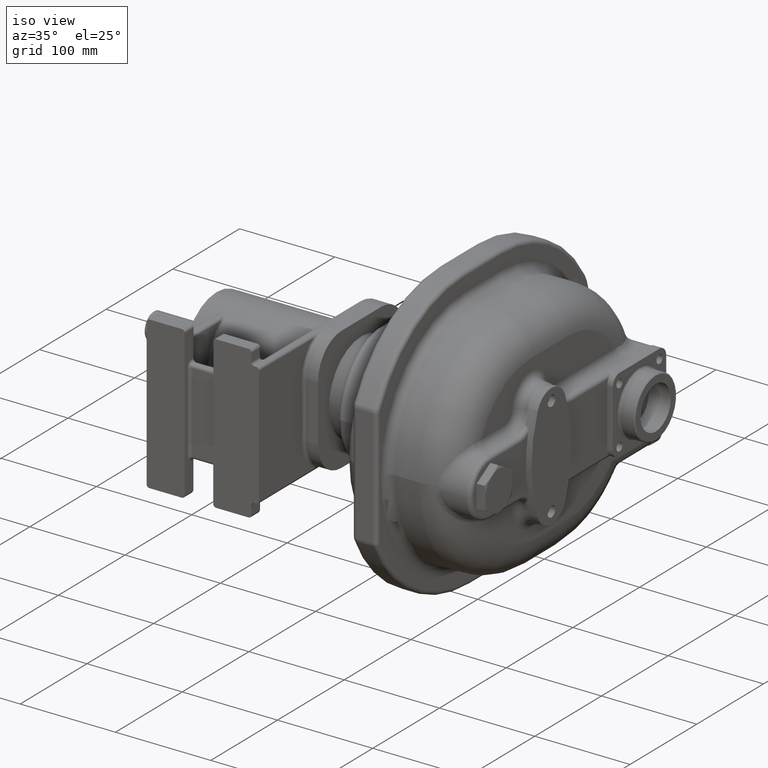
[diagram: clean part render]
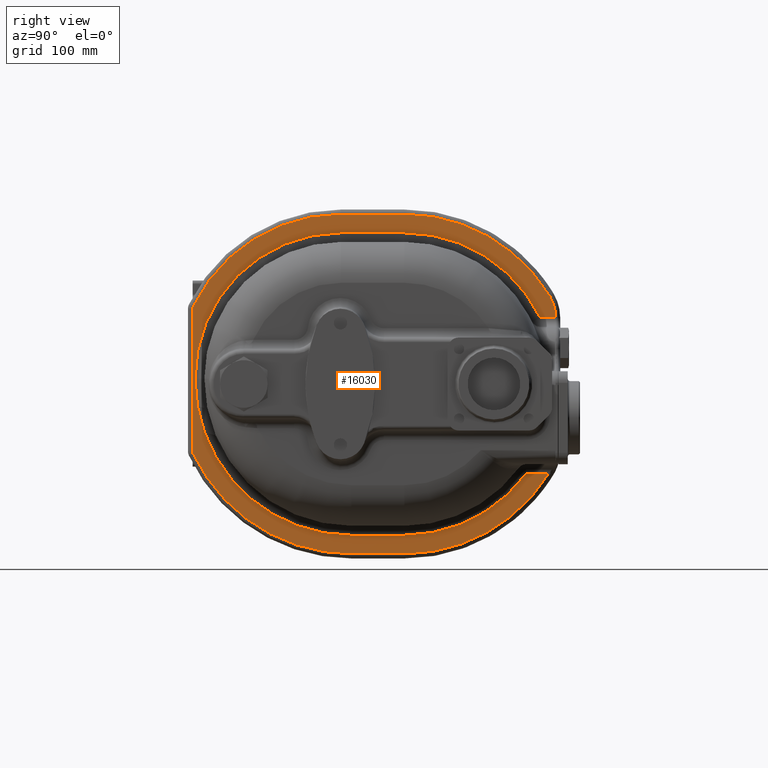
[diagram: tour spotlight — one face highlighted and labeled with its STEP entity id]
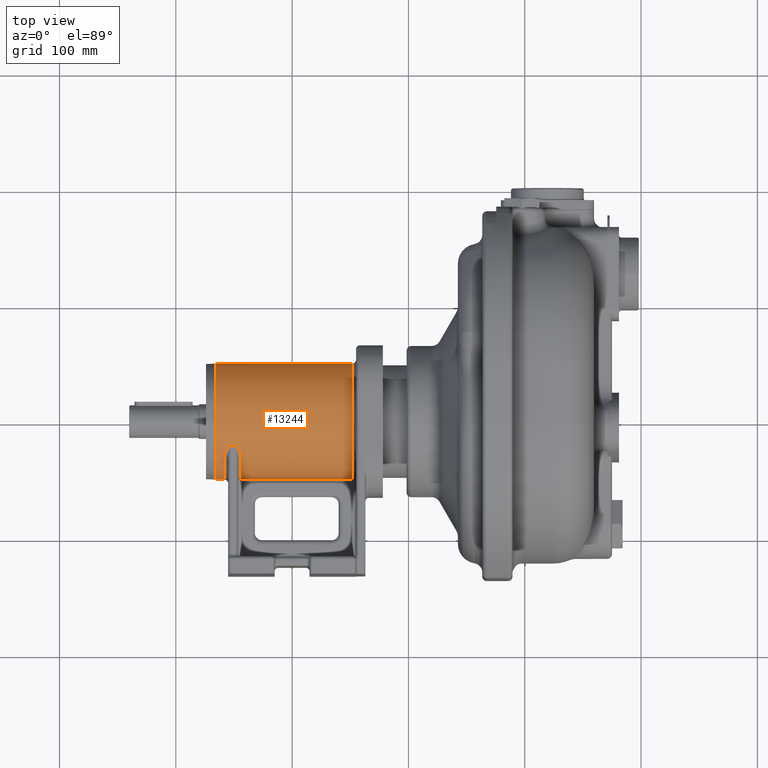
[diagram: tour spotlight — one face highlighted and labeled with its STEP entity id]
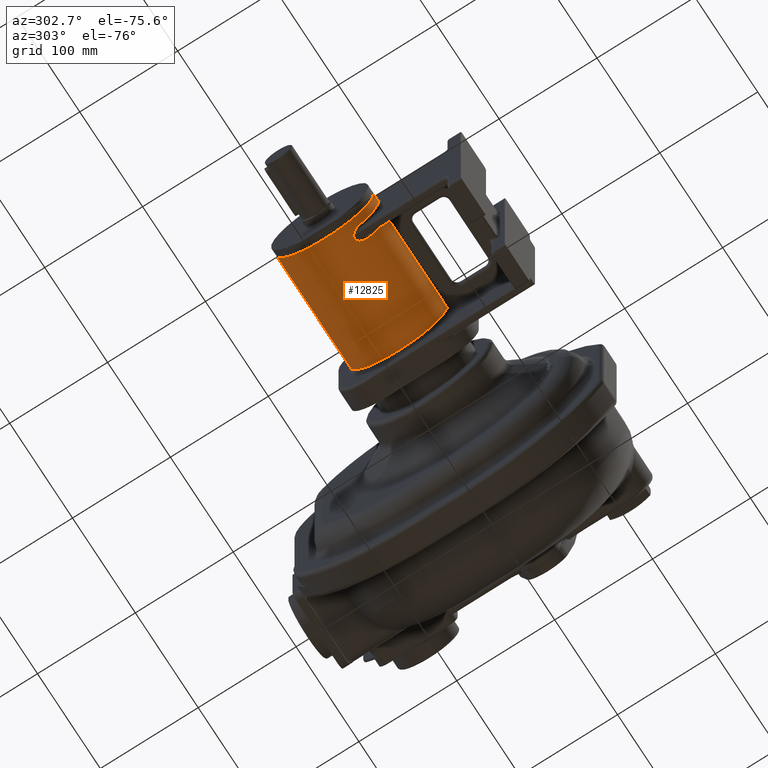
[diagram: tour spotlight — one face highlighted and labeled with its STEP entity id]
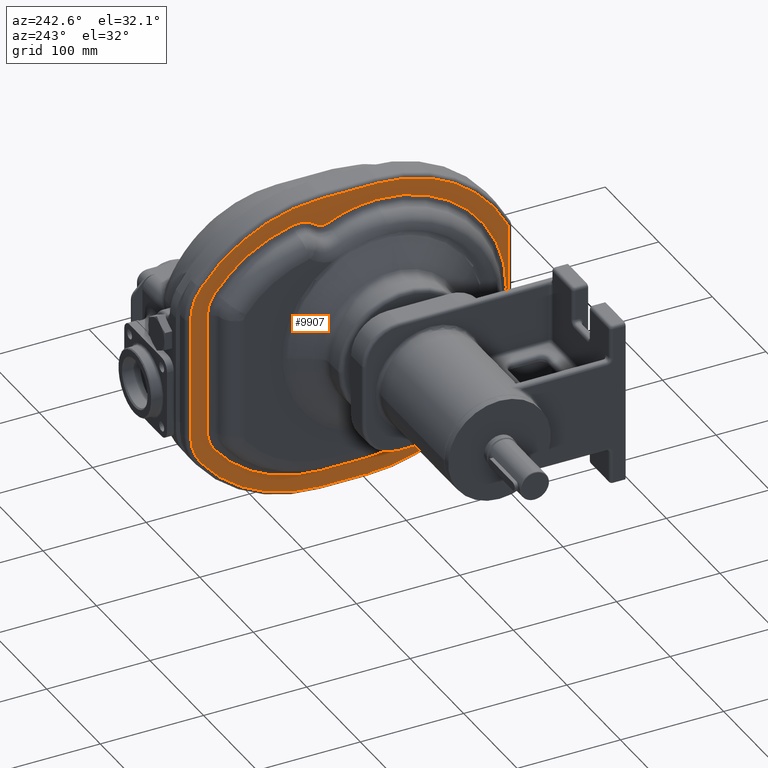
[diagram: tour spotlight — one face highlighted and labeled with its STEP entity id]
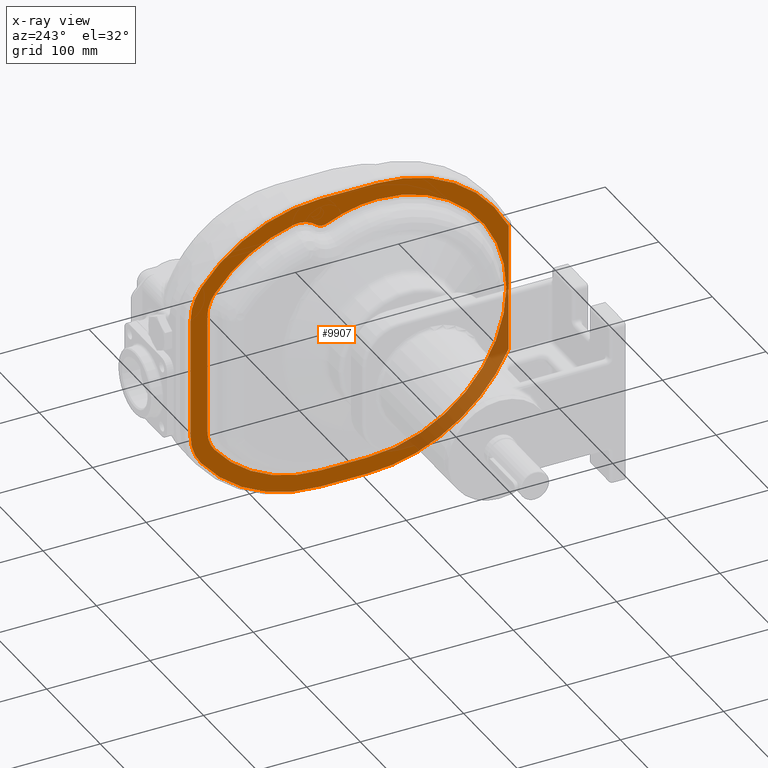
[diagram: x-ray of the same camera — body ghosted, this tour face saturated]
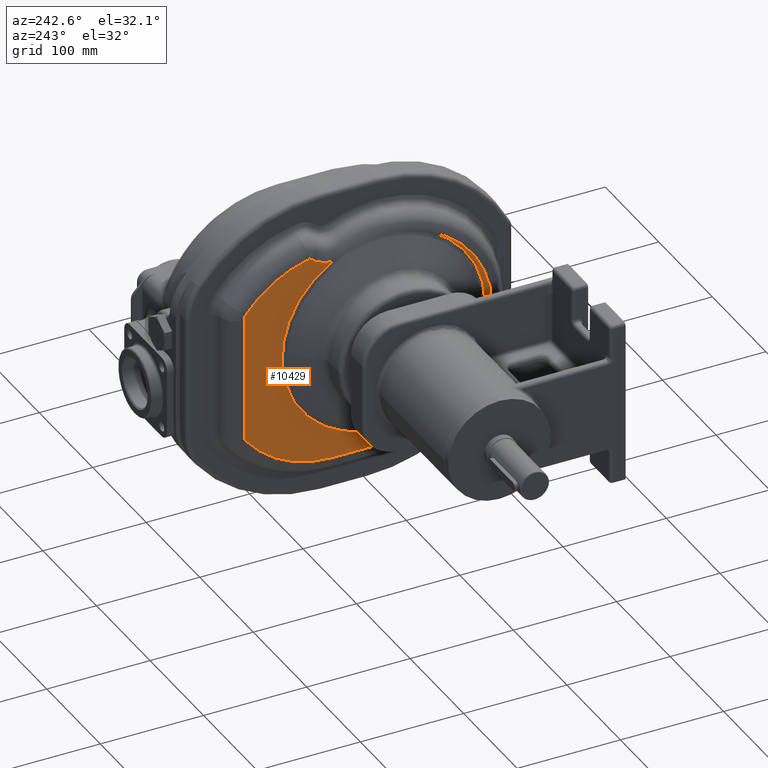
[diagram: tour spotlight — one face highlighted and labeled with its STEP entity id]
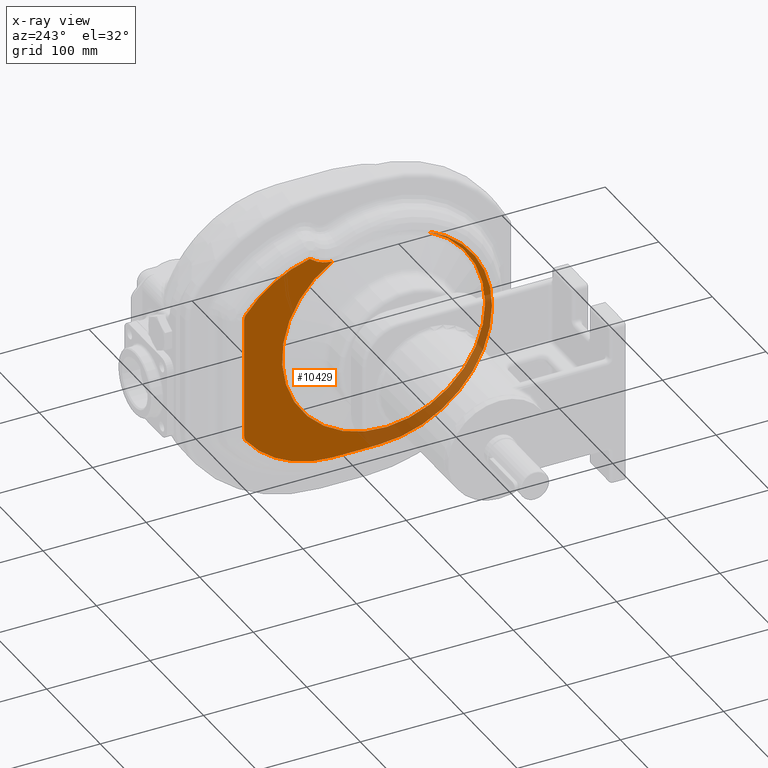
[diagram: x-ray of the same camera — body ghosted, this tour face saturated]
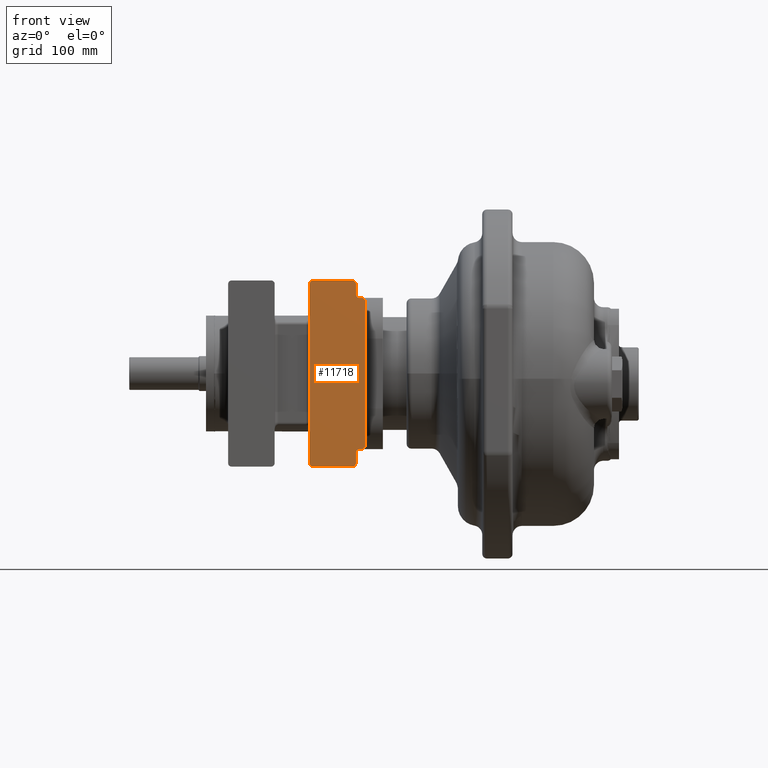
[diagram: tour spotlight — one face highlighted and labeled with its STEP entity id]
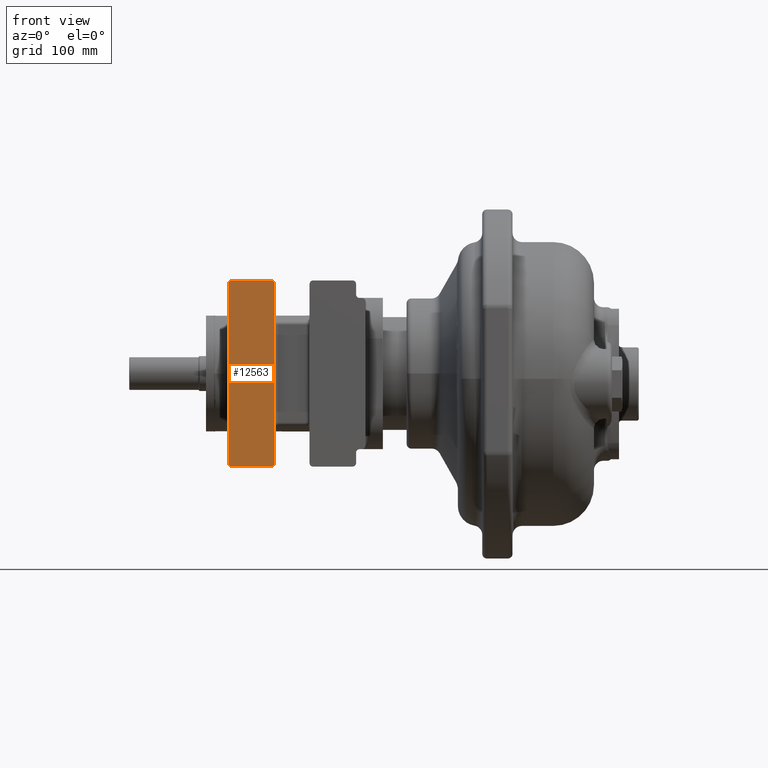
[diagram: tour spotlight — one face highlighted and labeled with its STEP entity id]
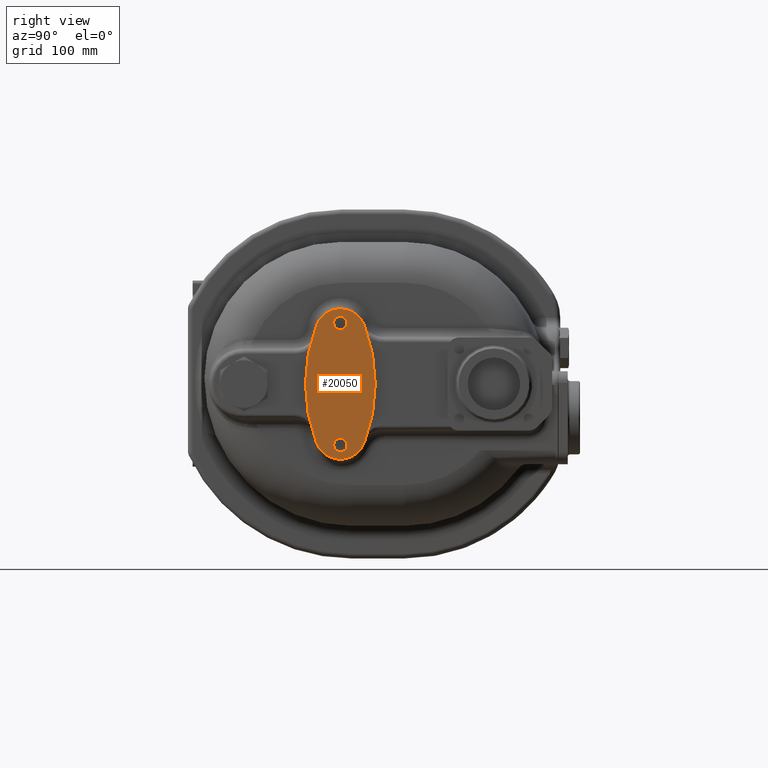
[diagram: tour spotlight — one face highlighted and labeled with its STEP entity id]
A machine part: a face-by-face anatomy tour. The part has 502 B-rep faces; the first image is the clean iso view, then the 8 largest visible faces are spotlighted one at a time (largest first), each with its STEP entity span.

Face 1 — right view, entity #16030. In plain terms, the highlighted planar face has unit normal (-1, 0, 0).
Definition (entity closure, byte-faithful):
#4224=CARTESIAN_POINT('',(-1.05E1,1.740443469087E2,-8.6E1));
#4241=DIRECTION('',(0.E0,0.E0,1.E0));
#4242=VECTOR('',#4241,1.229463250068E2);
#4243=CARTESIAN_POINT('',(-1.05E1,-1.32E2,-6.699799996800E1));
#4244=LINE('',#4243,#4242);
#4245=CARTESIAN_POINT('',(-1.05E1,-1.28E2,5.594832503883E1));
#4246=DIRECTION('',(-1.E0,0.E0,0.E0));
#4247=DIRECTION('',(0.E0,-1.E0,0.E0));
#4248=AXIS2_PLACEMENT_3D('',#4245,#4246,#4247);
#4250=CARTESIAN_POINT('',(-1.05E1,-4.5E0,-4.5E0));
#4251=DIRECTION('',(-1.E0,0.E0,0.E0));
#4252=DIRECTION('',(0.E0,-8.981818181818E-1,4.396241821006E-1));
#4253=AXIS2_PLACEMENT_3D('',#4250,#4251,#4252);
#4255=DIRECTION('',(0.E0,1.E0,0.E0));
#4256=VECTOR('',#4255,5.45E1);
#4257=CARTESIAN_POINT('',(-1.05E1,-4.5E0,1.37E2));
#4258=LINE('',#4257,#4256);
#4259=CARTESIAN_POINT('',(-1.05E1,5.E1,-9.E0));
#4260=DIRECTION('',(-1.E0,0.E0,0.E0));
#4261=DIRECTION('',(0.E0,0.E0,1.E0));
#4262=AXIS2_PLACEMENT_3D('',#4259,#4260,#4261);
#4264=CARTESIAN_POINT('',(-1.05E1,1.44E2,4.813142742834E1));
#4265=DIRECTION('',(-1.E0,0.E0,0.E0));
#4266=DIRECTION('',(0.E0,8.545454545454E-1,5.193766129849E-1));
#4267=AXIS2_PLACEMENT_3D('',#4264,#4265,#4266);
#4269=DIRECTION('',(0.E0,0.E0,-1.E0));
#4270=VECTOR('',#4269,1.314274283428E-1);
#4271=CARTESIAN_POINT('',(-1.05E1,1.8E2,4.813142742834E1));
#4272=LINE('',#4271,#4270);
#4273=DIRECTION('',(0.E0,-1.E0,-7.726439943148E-9));
#4274=VECTOR('',#4273,1.316250622635E1);
#4275=CARTESIAN_POINT('',(-1.05E1,1.8E2,4.8E1));
#4276=LINE('',#4275,#4274);
#4277=CARTESIAN_POINT('',(-1.05E1,5.E1,-9.E0));
#4278=DIRECTION('',(1.E0,0.E0,0.E0));
#4279=DIRECTION('',(0.E0,8.987499537079E-1,4.384615384615E-1));
#4280=AXIS2_PLACEMENT_3D('',#4277,#4278,#4279);
#4282=DIRECTION('',(0.E0,-1.E0,0.E0));
#4283=VECTOR('',#4282,5.45E1);
#4284=CARTESIAN_POINT('',(-1.05E1,5.E1,1.21E2));
#4285=LINE('',#4284,#4283);
#4286=CARTESIAN_POINT('',(-1.05E1,-4.5E0,-4.5E0));
#4287=DIRECTION('',(1.E0,0.E0,0.E0));
#4288=DIRECTION('',(0.E0,0.E0,1.E0));
#4289=AXIS2_PLACEMENT_3D('',#4286,#4287,#4288);
#4291=CARTESIAN_POINT('',(-1.05E1,4.5E0,-4.5E0));
#4292=DIRECTION('',(1.E0,0.E0,0.E0));
#4293=DIRECTION('',(0.E0,-1.E0,0.E0));
#4294=AXIS2_PLACEMENT_3D('',#4291,#4292,#4293);
#4296=DIRECTION('',(0.E0,1.E0,0.E0));
#4297=VECTOR('',#4296,4.55E1);
#4298=CARTESIAN_POINT('',(-1.05E1,4.5E0,-1.39E2));
#4299=LINE('',#4298,#4297);
#4300=CARTESIAN_POINT('',(-1.05E1,5.E1,-9.E0));
#4301=DIRECTION('',(1.E0,0.E0,0.E0));
#4302=DIRECTION('',(0.E0,0.E0,-1.E0));
#4303=AXIS2_PLACEMENT_3D('',#4300,#4301,#4302);
#4305=DIRECTION('',(0.E0,1.E0,0.E0));
#4306=VECTOR('',#4305,1.930180540810E1);
#4307=CARTESIAN_POINT('',(-1.05E1,1.547425415006E2,-8.6E1));
#4308=LINE('',#4307,#4306);
#4309=CARTESIAN_POINT('',(-1.05E1,5.E1,-9.E0));
#4310=DIRECTION('',(-1.E0,0.E0,0.E0));
#4311=DIRECTION('',(0.E0,8.496188144430E-1,-5.273972602740E-1));
#4312=AXIS2_PLACEMENT_3D('',#4309,#4310,#4311);
#4314=DIRECTION('',(0.E0,-1.E0,0.E0));
#4315=VECTOR('',#4314,4.55E1);
#4316=CARTESIAN_POINT('',(-1.05E1,5.E1,-1.55E2));
#4317=LINE('',#4316,#4315);
#4318=CARTESIAN_POINT('',(-1.05E1,4.5E0,-4.5E0));
#4319=DIRECTION('',(-1.E0,0.E0,0.E0));
#4320=DIRECTION('',(0.E0,0.E0,-1.E0));
#4321=AXIS2_PLACEMENT_3D('',#4318,#4319,#4320);
#4323=CARTESIAN_POINT('',(-1.05E1,-1.28E2,-6.699799996800E1));
#4324=DIRECTION('',(-1.E0,0.E0,0.E0));
#4325=DIRECTION('',(0.E0,-9.044368600683E-1,-4.266075083139E-1));
#4326=AXIS2_PLACEMENT_3D('',#4323,#4324,#4325);
#8556=CARTESIAN_POINT('',(-1.05E1,-1.32E2,-6.699799996800E1));
#8557=CARTESIAN_POINT('',(-1.05E1,-1.32E2,5.594832503883E1));
#8558=VERTEX_POINT('',#8556);
#8559=VERTEX_POINT('',#8557);
#8638=CARTESIAN_POINT('',(-1.05E1,1.668374939820E2,4.8E1));
#8639=CARTESIAN_POINT('',(-1.05E1,5.E1,1.21E2));
#8640=VERTEX_POINT('',#8638);
#8641=VERTEX_POINT('',#8639);
#8646=CARTESIAN_POINT('',(-1.05E1,-4.5E0,1.21E2));
#8647=VERTEX_POINT('',#8646);
#8650=CARTESIAN_POINT('',(-1.05E1,-1.3E2,-4.5E0));
#8651=VERTEX_POINT('',#8650);
#8664=CARTESIAN_POINT('',(-1.05E1,1.8E2,4.8E1));
#8665=VERTEX_POINT('',#8664);
#8668=CARTESIAN_POINT('',(-1.05E1,5.E1,-1.39E2));
#8669=CARTESIAN_POINT('',(-1.05E1,1.547425415006E2,-8.6E1));
#8670=VERTEX_POINT('',#8668);
#8671=VERTEX_POINT('',#8669);
#8672=CARTESIAN_POINT('',(-1.05E1,4.5E0,-1.39E2));
#8673=VERTEX_POINT('',#8672);
#8689=VERTEX_POINT('',#4224);
#8692=CARTESIAN_POINT('',(-1.05E1,5.E1,-1.55E2));
#8693=VERTEX_POINT('',#8692);
#8696=CARTESIAN_POINT('',(-1.05E1,4.5E0,-1.55E2));
#8697=VERTEX_POINT('',#8696);
#8700=CARTESIAN_POINT('',(-1.05E1,-1.316177474403E2,-6.870443000125E1));
#8701=VERTEX_POINT('',#8700);
#8704=CARTESIAN_POINT('',(-1.05E1,-1.315927272727E2,5.770682176723E1));
#8705=VERTEX_POINT('',#8704);
#8708=CARTESIAN_POINT('',(-1.05E1,-4.5E0,1.37E2));
#8709=VERTEX_POINT('',#8708);
#8712=CARTESIAN_POINT('',(-1.05E1,5.E1,1.37E2));
#8713=VERTEX_POINT('',#8712);
#8716=CARTESIAN_POINT('',(-1.05E1,1.747636363636E2,6.682898549580E1));
#8717=VERTEX_POINT('',#8716);
#8720=CARTESIAN_POINT('',(-1.05E1,1.8E2,4.813142742834E1));
#8721=VERTEX_POINT('',#8720);
#15996=CARTESIAN_POINT('',(-1.05E1,0.E0,0.E0));
#15997=DIRECTION('',(-1.E0,0.E0,0.E0));
#15998=DIRECTION('',(0.E0,0.E0,1.E0));
#15999=AXIS2_PLACEMENT_3D('',#15996,#15997,#15998);
#16000=PLANE('',#15999);
#16001=ORIENTED_EDGE('',*,*,#14913,.T.);
#16002=ORIENTED_EDGE('',*,*,#14939,.T.);
#16003=ORIENTED_EDGE('',*,*,#14953,.T.);
#16004=ORIENTED_EDGE('',*,*,#14967,.T.);
#16005=ORIENTED_EDGE('',*,*,#14981,.T.);
#16006=ORIENTED_EDGE('',*,*,#14996,.T.);
#16008=ORIENTED_EDGE('',*,*,#16007,.T.);
#16010=ORIENTED_EDGE('',*,*,#16009,.T.);
#16012=ORIENTED_EDGE('',*,*,#16011,.T.);
#16014=ORIENTED_EDGE('',*,*,#16013,.T.);
#16016=ORIENTED_EDGE('',*,*,#16015,.T.);
#16018=ORIENTED_EDGE('',*,*,#16017,.T.);
#16020=ORIENTED_EDGE('',*,*,#16019,.T.);
#16022=ORIENTED_EDGE('',*,*,#16021,.T.);
#16023=ORIENTED_EDGE('',*,*,#15934,.T.);
#16024=ORIENTED_EDGE('',*,*,#15990,.T.);
#16025=ORIENTED_EDGE('',*,*,#14870,.T.);
#16026=ORIENTED_EDGE('',*,*,#14885,.T.);
#16027=ORIENTED_EDGE('',*,*,#14898,.T.);
#16028=EDGE_LOOP('',(#16001,#16002,#16003,#16004,#16005,#16006,#16008,#16010,
#16012,#16014,#16016,#16018,#16020,#16022,#16023,#16024,#16025,#16026,#16027));
#16029=FACE_OUTER_BOUND('',#16028,.F.);
#16030=ADVANCED_FACE('',(#16029),#16000,.F.);
#4249=CIRCLE('',#4248,4.E0);
#4254=CIRCLE('',#4253,1.415E2);
#4263=CIRCLE('',#4262,1.46E2);
#4268=CIRCLE('',#4267,3.6E1);
#4281=CIRCLE('',#4280,1.3E2);
#4290=CIRCLE('',#4289,1.255E2);
#4295=CIRCLE('',#4294,1.345E2);
#4304=CIRCLE('',#4303,1.3E2);
#4313=CIRCLE('',#4312,1.46E2);
#4322=CIRCLE('',#4321,1.505E2);
#4327=CIRCLE('',#4326,4.E0);
#14870=EDGE_CURVE('',#8693,#8697,#4317,.T.);
#14885=EDGE_CURVE('',#8697,#8701,#4322,.T.);
#14898=EDGE_CURVE('',#8701,#8558,#4327,.T.);
#14913=EDGE_CURVE('',#8558,#8559,#4244,.T.);
#14939=EDGE_CURVE('',#8559,#8705,#4249,.T.);
#14953=EDGE_CURVE('',#8705,#8709,#4254,.T.);
#14967=EDGE_CURVE('',#8709,#8713,#4258,.T.);
#14981=EDGE_CURVE('',#8713,#8717,#4263,.T.);
#14996=EDGE_CURVE('',#8717,#8721,#4268,.T.);
#15934=EDGE_CURVE('',#8671,#8689,#4308,.T.);
#15990=EDGE_CURVE('',#8689,#8693,#4313,.T.);
#16007=EDGE_CURVE('',#8721,#8665,#4272,.T.);
#16009=EDGE_CURVE('',#8665,#8640,#4276,.T.);
#16011=EDGE_CURVE('',#8640,#8641,#4281,.T.);
#16013=EDGE_CURVE('',#8641,#8647,#4285,.T.);
#16015=EDGE_CURVE('',#8647,#8651,#4290,.T.);
#16017=EDGE_CURVE('',#8651,#8673,#4295,.T.);
#16019=EDGE_CURVE('',#8673,#8670,#4299,.T.);
#16021=EDGE_CURVE('',#8670,#8671,#4304,.T.);

Face 2 — top view, entity #13244. In plain terms, the highlighted cylindrical surface (partial cylindrical patch) has radius 50 mm, axis along (1, 0, 0).
Definition (entity closure, byte-faithful):
#2419=DIRECTION('',(-1.E0,0.E0,0.E0));
#2420=VECTOR('',#2419,1.18E2);
#2421=CARTESIAN_POINT('',(-1.48E2,5.E1,0.E0));
#2422=LINE('',#2421,#2420);
#2428=DIRECTION('',(-1.E0,0.E0,0.E0));
#2429=VECTOR('',#2428,8.E0);
#2430=CARTESIAN_POINT('',(-2.58E2,-5.E1,0.E0));
#2431=LINE('',#2430,#2429);
#2472=DIRECTION('',(1.E0,0.E0,0.E0));
#2473=VECTOR('',#2472,9.599999999760E1);
#2474=CARTESIAN_POINT('',(-2.44E2,-4.956198315684E1,6.603773584906E0));
#2475=LINE('',#2474,#2473);
#2476=CARTESIAN_POINT('',(-2.44E2,0.E0,0.E0));
#2477=DIRECTION('',(1.E0,0.E0,0.E0));
#2478=DIRECTION('',(0.E0,-6.099332028394E-1,7.924528301887E-1));
#2479=AXIS2_PLACEMENT_3D('',#2476,#2477,#2478);
#2481=CARTESIAN_POINT('',(-2.5E2,-2.120019344740E1,4.528301886792E1));
#2482=CARTESIAN_POINT('',(-2.499532613673E2,-2.120019346348E1,
4.528301886256E1));
#2483=CARTESIAN_POINT('',(-2.498595693940E2,-2.120239529157E1,
4.528198812616E1));
#2484=CARTESIAN_POINT('',(-2.497184772932E2,-2.121238389581E1,
4.527731042082E1));
#2485=CARTESIAN_POINT('',(-2.495765610568E2,-2.122917555019E1,
4.526944078390E1));
#2486=CARTESIAN_POINT('',(-2.494334374113E2,-2.125296932823E1,
4.525827654950E1));
#2487=CARTESIAN_POINT('',(-2.492886598282E2,-2.128405907969E1,
4.524366607214E1));
#2488=CARTESIAN_POINT('',(-2.491418282075E2,-2.132282092678E1,
4.522541373667E1));
#2489=CARTESIAN_POINT('',(-2.489925351112E2,-2.136972250410E1,
4.520327445887E1));
#2490=CARTESIAN_POINT('',(-2.488403919811E2,-2.142532034600E1,
4.517695341238E1));
#2491=CARTESIAN_POINT('',(-2.486849907125E2,-2.149027800834E1,
4.514609552108E1));
#2492=CARTESIAN_POINT('',(-2.485259303541E2,-2.156536673033E1,
4.511028262961E1));
#2493=CARTESIAN_POINT('',(-2.483628258230E2,-2.165146894638E1,
4.506902871649E1));
#2494=CARTESIAN_POINT('',(-2.481953121596E2,-2.174958024286E1,
4.502177511337E1));
#2495=CARTESIAN_POINT('',(-2.480230541327E2,-2.186080921429E1,
4.496788589380E1));
#2496=CARTESIAN_POINT('',(-2.478457675E2,-2.198637568730E1,4.490664309730E1));
#2497=CARTESIAN_POINT('',(-2.476632357405E2,-2.212760193213E1,
4.483724431374E1));
#2498=CARTESIAN_POINT('',(-2.474753335793E2,-2.228588862764E1,
4.475880677944E1));
#2499=CARTESIAN_POINT('',(-2.472820590277E2,-2.246268255984E1,
4.467037488106E1));
#2500=CARTESIAN_POINT('',(-2.470835687182E2,-2.265942784293E1,
4.457093560862E1));
#2501=CARTESIAN_POINT('',(-2.468802174930E2,-2.287749915896E1,
4.445944365448E1));
#2502=CARTESIAN_POINT('',(-2.466726014700E2,-2.311811532752E1,
4.433485841934E1));
#2503=CARTESIAN_POINT('',(-2.464616041234E2,-2.338223242685E1,
4.419619528097E1));
#2504=CARTESIAN_POINT('',(-2.462484172344E2,-2.367041553365E1,
4.404259430538E1));
#2505=CARTESIAN_POINT('',(-2.460345517287E2,-2.398272153367E1,
4.387339202959E1));
#2506=CARTESIAN_POINT('',(-2.458218174241E2,-2.431859840925E1,
4.368819503896E1));
#2507=CARTESIAN_POINT('',(-2.456122716821E2,-2.467682482157E1,
4.348694301169E1));
#2508=CARTESIAN_POINT('',(-2.454081353024E2,-2.505550648759E1,
4.326995031583E1));
#2509=CARTESIAN_POINT('',(-2.452116898398E2,-2.545213807619E1,
4.303791699362E1));
#2510=CARTESIAN_POINT('',(-2.450251501699E2,-2.586373287106E1,
4.279190121170E1));
#2511=CARTESIAN_POINT('',(-2.448505568679E2,-2.628698892358E1,
4.253326410992E1));
#2512=CARTESIAN_POINT('',(-2.446896906623E2,-2.671846891027E1,
4.226359503604E1));
#2513=CARTESIAN_POINT('',(-2.445440147042E2,-2.715477480541E1,
4.198462507634E1));
#2514=CARTESIAN_POINT('',(-2.444146509815E2,-2.759268963382E1,
4.169814504038E1));
#2515=CARTESIAN_POINT('',(-2.443023878206E2,-2.802926030260E1,
4.140594827515E1));
#2516=CARTESIAN_POINT('',(-2.442076960805E2,-2.846189678559E1,
4.110974997534E1));
#2517=CARTESIAN_POINT('',(-2.441307835507E2,-2.888828128736E1,
4.081123116841E1));
#2518=CARTESIAN_POINT('',(-2.440715928344E2,-2.930663156786E1,
4.051182862786E1));
#2519=CARTESIAN_POINT('',(-2.440299117927E2,-2.971521781058E1,
4.021305319298E1));
#2520=CARTESIAN_POINT('',(-2.440053360394E2,-3.011281803525E1,
3.991614261716E1));
#2521=CARTESIAN_POINT('',(-2.440000000528E2,-3.036997531044E1,
3.972014799665E1));
#2522=CARTESIAN_POINT('',(-2.44E2,-3.049666014197E1,3.962264150943E1));
#2524=DIRECTION('',(1.E0,0.E0,0.E0));
#2525=VECTOR('',#2524,2.E0);
#2526=CARTESIAN_POINT('',(-2.52E2,-2.120019344740E1,4.528301886792E1));
#2527=LINE('',#2526,#2525);
#2528=CARTESIAN_POINT('',(-2.58E2,-3.049666014197E1,3.962264150943E1));
#2529=CARTESIAN_POINT('',(-2.579999999485E2,-3.036997461998E1,
3.972014852749E1));
#2530=CARTESIAN_POINT('',(-2.579946639336E2,-3.011281674844E1,
3.991614359978E1));
#2531=CARTESIAN_POINT('',(-2.579700879784E2,-2.971521545904E1,
4.021305491013E1));
#2532=CARTESIAN_POINT('',(-2.579284076853E2,-2.930663567900E1,
4.051182563994E1));
#2533=CARTESIAN_POINT('',(-2.578692170103E2,-2.888828447508E1,
4.081122890263E1));
#2534=CARTESIAN_POINT('',(-2.577923056345E2,-2.846190621991E1,
4.110974341327E1));
#2535=CARTESIAN_POINT('',(-2.576976147572E2,-2.802927224729E1,
4.140594018644E1));
#2536=CARTESIAN_POINT('',(-2.575853525202E2,-2.759270226781E1,
4.169813667554E1));
#2537=CARTESIAN_POINT('',(-2.574559899882E2,-2.715478852854E1,
4.198461619776E1));
#2538=CARTESIAN_POINT('',(-2.573103147117E2,-2.671848287744E1,
4.226358620468E1));
#2539=CARTESIAN_POINT('',(-2.571494489700E2,-2.628700334E1,4.253325520150E1));
#2540=CARTESIAN_POINT('',(-2.569748552100E2,-2.586374602835E1,
4.279189326859E1));
#2541=CARTESIAN_POINT('',(-2.567883147527E2,-2.545214914852E1,
4.303791045360E1));
#2542=CARTESIAN_POINT('',(-2.565918691015E2,-2.505551609479E1,
4.326994475813E1));
#2543=CARTESIAN_POINT('',(-2.563877330995E2,-2.467683286995E1,
4.348693845248E1));
#2544=CARTESIAN_POINT('',(-2.561781858787E2,-2.431860414337E1,
4.368819185435E1));
#2545=CARTESIAN_POINT('',(-2.559654500843E2,-2.398272599547E1,
4.387338959199E1));
#2546=CARTESIAN_POINT('',(-2.557515845366E2,-2.367042018702E1,
4.404259180288E1));
#2547=CARTESIAN_POINT('',(-2.555383991783E2,-2.338223756842E1,
4.419619256013E1));
#2548=CARTESIAN_POINT('',(-2.553274038902E2,-2.311812012971E1,
4.433485591836E1));
#2549=CARTESIAN_POINT('',(-2.551197895156E2,-2.287750239690E1,
4.445944199031E1));
#2550=CARTESIAN_POINT('',(-2.549164367320E2,-2.265943165146E1,
4.457093366851E1));
#2551=CARTESIAN_POINT('',(-2.547179442285E2,-2.246268895614E1,
4.467037166030E1));
#2552=CARTESIAN_POINT('',(-2.545246694932E2,-2.228589662947E1,
4.475880279454E1));
#2553=CARTESIAN_POINT('',(-2.543367685642E2,-2.212760925515E1,
4.483724070232E1));
#2554=CARTESIAN_POINT('',(-2.541542380486E2,-2.198638036174E1,
4.490664081273E1));
#2555=CARTESIAN_POINT('',(-2.539769520851E2,-2.186081079299E1,
4.496788512872E1));
#2556=CARTESIAN_POINT('',(-2.538046931667E2,-2.174958087220E1,
4.502177480922E1));
#2557=CARTESIAN_POINT('',(-2.536371767144E2,-2.165147007822E1,
4.506902817231E1));
#2558=CARTESIAN_POINT('',(-2.534740703632E2,-2.156536794458E1,
4.511028204948E1));
#2559=CARTESIAN_POINT('',(-2.533150087177E2,-2.149027827239E1,
4.514609539624E1));
#2560=CARTESIAN_POINT('',(-2.531596050628E2,-2.142531932021E1,
4.517695389937E1));
#2561=CARTESIAN_POINT('',(-2.530074605443E2,-2.136972093978E1,
4.520327519860E1));
#2562=CARTESIAN_POINT('',(-2.528581648236E2,-2.132281874592E1,
4.522541476517E1));
#2563=CARTESIAN_POINT('',(-2.527113291874E2,-2.128405630267E1,
4.524366737864E1));
#2564=CARTESIAN_POINT('',(-2.525665480210E2,-2.125296647494E1,
4.525827788936E1));
#2565=CARTESIAN_POINT('',(-2.524234207522E2,-2.122917282414E1,
4.526944206224E1));
#2566=CARTESIAN_POINT('',(-2.522814993668E2,-2.121238157483E1,
4.527731150814E1));
#2567=CARTESIAN_POINT('',(-2.521404114439E2,-2.120239454329E1,
4.528198847620E1));
#2568=CARTESIAN_POINT('',(-2.520467309356E2,-2.120019346684E1,
4.528301886149E1));
#2569=CARTESIAN_POINT('',(-2.52E2,-2.120019344740E1,4.528301886792E1));
#2571=CARTESIAN_POINT('',(-2.58E2,0.E0,0.E0));
#2572=DIRECTION('',(-1.E0,0.E0,0.E0));
#2573=DIRECTION('',(0.E0,-1.E0,0.E0));
#2574=AXIS2_PLACEMENT_3D('',#2571,#2572,#2573);
#2576=CARTESIAN_POINT('',(-2.66E2,0.E0,0.E0));
#2577=DIRECTION('',(-1.E0,0.E0,0.E0));
#2578=DIRECTION('',(0.E0,-1.E0,0.E0));
#2579=AXIS2_PLACEMENT_3D('',#2576,#2577,#2578);
#2581=CARTESIAN_POINT('',(-1.48E2,-1.175659927181E-14,0.E0));
#2582=DIRECTION('',(1.E0,0.E0,0.E0));
#2583=DIRECTION('',(0.E0,1.E0,0.E0));
#2584=AXIS2_PLACEMENT_3D('',#2581,#2582,#2583);
#9174=CARTESIAN_POINT('',(-2.66E2,5.E1,0.E0));
#9175=CARTESIAN_POINT('',(-2.66E2,-5.E1,-1.224645186824E-14));
#9176=VERTEX_POINT('',#9174);
#9177=VERTEX_POINT('',#9175);
#9422=CARTESIAN_POINT('',(-1.48E2,5.E1,0.E0));
#9423=VERTEX_POINT('',#9422);
#9424=CARTESIAN_POINT('',(-1.48E2,-4.956198315684E1,6.603773584906E0));
#9425=VERTEX_POINT('',#9424);
#9426=CARTESIAN_POINT('',(-2.44E2,-4.956198315684E1,6.603773584906E0));
#9427=VERTEX_POINT('',#9426);
#9428=CARTESIAN_POINT('',(-2.44E2,-3.049666014197E1,3.962264150943E1));
#9429=VERTEX_POINT('',#9428);
#9430=VERTEX_POINT('',#2481);
#9433=CARTESIAN_POINT('',(-2.52E2,-2.120019344740E1,4.528301886792E1));
#9434=VERTEX_POINT('',#9433);
#9453=VERTEX_POINT('',#2528);
#9454=CARTESIAN_POINT('',(-2.58E2,-5.E1,0.E0));
#9455=VERTEX_POINT('',#9454);
#13221=CARTESIAN_POINT('',(-2.76E2,0.E0,0.E0));
#13222=DIRECTION('',(1.E0,0.E0,0.E0));
#13223=DIRECTION('',(0.E0,-1.E0,0.E0));
#13224=AXIS2_PLACEMENT_3D('',#13221,#13222,#13223);
#13225=CYLINDRICAL_SURFACE('',#13224,5.E1);
#13227=ORIENTED_EDGE('',*,*,#13226,.F.);
#13229=ORIENTED_EDGE('',*,*,#13228,.F.);
#13231=ORIENTED_EDGE('',*,*,#13230,.F.);
#13233=ORIENTED_EDGE('',*,*,#13232,.F.);
#13235=ORIENTED_EDGE('',*,*,#13234,.F.);
#13236=ORIENTED_EDGE('',*,*,#13212,.F.);
#13237=ORIENTED_EDGE('',*,*,#12819,.T.);
#13239=ORIENTED_EDGE('',*,*,#13238,.T.);
#13240=ORIENTED_EDGE('',*,*,#12815,.F.);
#13241=ORIENTED_EDGE('',*,*,#11393,.T.);
#13242=EDGE_LOOP('',(#13227,#13229,#13231,#13233,#13235,#13236,#13237,#13239,
#13240,#13241));
#13243=FACE_OUTER_BOUND('',#13242,.F.);
#13244=ADVANCED_FACE('',(#13243),#13225,.T.);
#2480=CIRCLE('',#2479,5.E1);
#2523=B_SPLINE_CURVE_WITH_KNOTS('',3,(#2481,#2482,#2483,#2484,#2485,#2486,#2487,
#2488,#2489,#2490,#2491,#2492,#2493,#2494,#2495,#2496,#2497,#2498,#2499,#2500,
#2501,#2502,#2503,#2504,#2505,#2506,#2507,#2508,#2509,#2510,#2511,#2512,#2513,
#2514,#2515,#2516,#2517,#2518,#2519,#2520,#2521,#2522),.UNSPECIFIED.,.F.,.F.,(4,
1,1,1,1,1,1,1,1,1,1,1,1,1,1,1,1,1,1,1,1,1,1,1,1,1,1,1,1,1,1,1,1,1,1,1,1,1,1,4),(
0.E0,2.564102564103E-2,5.128205128205E-2,7.692307692308E-2,1.025641025641E-1,
1.282051282051E-1,1.538461538462E-1,1.794871794872E-1,2.051282051282E-1,
2.307692307692E-1,2.564102564103E-1,2.820512820513E-1,3.076923076923E-1,
3.333333333333E-1,3.589743589744E-1,3.846153846154E-1,4.102564102564E-1,
4.358974358974E-1,4.615384615385E-1,4.871794871795E-1,5.128205128205E-1,
5.384615384615E-1,5.641025641026E-1,5.897435897436E-1,6.153846153846E-1,
6.410256410256E-1,6.666666666667E-1,6.923076923077E-1,7.179487179487E-1,
7.435897435897E-1,7.692307692308E-1,7.948717948718E-1,8.205128205128E-1,
8.461538461538E-1,8.717948717949E-1,8.974358974359E-1,9.230769230769E-1,
9.487179487179E-1,9.743589743590E-1,1.E0),.UNSPECIFIED.);
#2570=B_SPLINE_CURVE_WITH_KNOTS('',3,(#2528,#2529,#2530,#2531,#2532,#2533,#2534,
#2535,#2536,#2537,#2538,#2539,#2540,#2541,#2542,#2543,#2544,#2545,#2546,#2547,
#2548,#2549,#2550,#2551,#2552,#2553,#2554,#2555,#2556,#2557,#2558,#2559,#2560,
#2561,#2562,#2563,#2564,#2565,#2566,#2567,#2568,#2569),.UNSPECIFIED.,.F.,.F.,(4,
1,1,1,1,1,1,1,1,1,1,1,1,1,1,1,1,1,1,1,1,1,1,1,1,1,1,1,1,1,1,1,1,1,1,1,1,1,1,4),(
0.E0,2.564102564103E-2,5.128205128205E-2,7.692307692308E-2,1.025641025641E-1,
1.282051282051E-1,1.538461538462E-1,1.794871794872E-1,2.051282051282E-1,
2.307692307692E-1,2.564102564103E-1,2.820512820513E-1,3.076923076923E-1,
3.333333333333E-1,3.589743589744E-1,3.846153846154E-1,4.102564102564E-1,
4.358974358974E-1,4.615384615385E-1,4.871794871795E-1,5.128205128205E-1,
5.384615384615E-1,5.641025641026E-1,5.897435897436E-1,6.153846153846E-1,
6.410256410256E-1,6.666666666667E-1,6.923076923077E-1,7.179487179487E-1,
7.435897435897E-1,7.692307692308E-1,7.948717948718E-1,8.205128205128E-1,
8.461538461538E-1,8.717948717949E-1,8.974358974359E-1,9.230769230769E-1,
9.487179487179E-1,9.743589743590E-1,1.E0),.UNSPECIFIED.);
#2575=CIRCLE('',#2574,5.E1);
#2580=CIRCLE('',#2579,5.E1);
#2585=CIRCLE('',#2584,5.E1);
#11393=EDGE_CURVE('',#9423,#9425,#2585,.T.);
#12815=EDGE_CURVE('',#9423,#9176,#2422,.T.);
#12819=EDGE_CURVE('',#9455,#9177,#2431,.T.);
#13212=EDGE_CURVE('',#9455,#9453,#2575,.T.);
#13226=EDGE_CURVE('',#9427,#9425,#2475,.T.);
#13228=EDGE_CURVE('',#9429,#9427,#2480,.T.);
#13230=EDGE_CURVE('',#9430,#9429,#2523,.T.);
#13232=EDGE_CURVE('',#9434,#9430,#2527,.T.);
#13234=EDGE_CURVE('',#9453,#9434,#2570,.T.);
#13238=EDGE_CURVE('',#9177,#9176,#2580,.T.);

Face 3 — auxiliary view, entity #12825. In plain terms, the highlighted cylindrical surface (partial cylindrical patch) has radius 50 mm, axis along (1, 0, 0).
Definition (entity closure, byte-faithful):
#2315=CARTESIAN_POINT('',(-2.52E2,-2.120019344740E1,-4.528301886792E1));
#2316=CARTESIAN_POINT('',(-2.520467386325E2,-2.120019346348E1,
-4.528301886256E1));
#2317=CARTESIAN_POINT('',(-2.521404306053E2,-2.120239529155E1,
-4.528198812618E1));
#2318=CARTESIAN_POINT('',(-2.522815227059E2,-2.121238389572E1,
-4.527731042087E1));
#2319=CARTESIAN_POINT('',(-2.524234389423E2,-2.122917555006E1,
-4.526944078396E1));
#2320=CARTESIAN_POINT('',(-2.525665625876E2,-2.125296932802E1,
-4.525827654959E1));
#2321=CARTESIAN_POINT('',(-2.527113401707E2,-2.128405907943E1,
-4.524366607226E1));
#2322=CARTESIAN_POINT('',(-2.528581717914E2,-2.132282092644E1,
-4.522541373682E1));
#2323=CARTESIAN_POINT('',(-2.530074648876E2,-2.136972250369E1,
-4.520327445906E1));
#2324=CARTESIAN_POINT('',(-2.531596080177E2,-2.142532034552E1,
-4.517695341261E1));
#2325=CARTESIAN_POINT('',(-2.533150092863E2,-2.149027800780E1,
-4.514609552134E1));
#2326=CARTESIAN_POINT('',(-2.534740696446E2,-2.156536672971E1,
-4.511028262991E1));
#2327=CARTESIAN_POINT('',(-2.536371741757E2,-2.165146894574E1,
-4.506902871680E1));
#2328=CARTESIAN_POINT('',(-2.538046878390E2,-2.174958024210E1,
-4.502177511374E1));
#2329=CARTESIAN_POINT('',(-2.539769458661E2,-2.186080921333E1,
-4.496788589427E1));
#2330=CARTESIAN_POINT('',(-2.541542324988E2,-2.198637568621E1,
-4.490664309783E1));
#2331=CARTESIAN_POINT('',(-2.543367642582E2,-2.212760193102E1,
-4.483724431429E1));
#2332=CARTESIAN_POINT('',(-2.545246664194E2,-2.228588862654E1,
-4.475880677999E1));
#2333=CARTESIAN_POINT('',(-2.547179409709E2,-2.246268255870E1,
-4.467037488164E1));
#2334=CARTESIAN_POINT('',(-2.549164312804E2,-2.265942784167E1,
-4.457093560926E1));
#2335=CARTESIAN_POINT('',(-2.551197825058E2,-2.287749915743E1,
-4.445944365527E1));
#2336=CARTESIAN_POINT('',(-2.553273985290E2,-2.311811532596E1,
-4.433485842015E1));
#2337=CARTESIAN_POINT('',(-2.555383958756E2,-2.338223242533E1,
-4.419619528178E1));
#2338=CARTESIAN_POINT('',(-2.557515827645E2,-2.367041553215E1,
-4.404259430619E1));
#2339=CARTESIAN_POINT('',(-2.559654482699E2,-2.398272153186E1,
-4.387339203058E1));
#2340=CARTESIAN_POINT('',(-2.561781825746E2,-2.431859840746E1,
-4.368819503996E1));
#2341=CARTESIAN_POINT('',(-2.563877283171E2,-2.467682482021E1,
-4.348694301246E1));
#2342=CARTESIAN_POINT('',(-2.565918646960E2,-2.505550648410E1,
-4.326995031785E1));
#2343=CARTESIAN_POINT('',(-2.567883101595E2,-2.545213807490E1,
-4.303791699440E1));
#2344=CARTESIAN_POINT('',(-2.569748498303E2,-2.586373287151E1,
-4.279190121143E1));
#2345=CARTESIAN_POINT('',(-2.571494431316E2,-2.628698892216E1,
-4.253326411079E1));
#2346=CARTESIAN_POINT('',(-2.573103093369E2,-2.671846890823E1,
-4.226359503733E1));
#2347=CARTESIAN_POINT('',(-2.574559852957E2,-2.715477480518E1,
-4.198462507649E1));
#2348=CARTESIAN_POINT('',(-2.575853490180E2,-2.759268963174E1,
-4.169814504176E1));
#2349=CARTESIAN_POINT('',(-2.576976121792E2,-2.802926030130E1,
-4.140594827605E1));
#2350=CARTESIAN_POINT('',(-2.577923039196E2,-2.846189678656E1,
-4.110974997467E1));
#2351=CARTESIAN_POINT('',(-2.578692164495E2,-2.888828128852E1,
-4.081123116759E1));
#2352=CARTESIAN_POINT('',(-2.579284071658E2,-2.930663156884E1,
-4.051182862715E1));
#2353=CARTESIAN_POINT('',(-2.579700882073E2,-2.971521781094E1,
-4.021305319271E1));
#2354=CARTESIAN_POINT('',(-2.579946639606E2,-3.011281803560E1,
-3.991614261690E1));
#2355=CARTESIAN_POINT('',(-2.579999999472E2,-3.036997531056E1,
-3.972014799656E1));
#2356=CARTESIAN_POINT('',(-2.58E2,-3.049666014197E1,-3.962264150943E1));
#2358=DIRECTION('',(-1.E0,0.E0,0.E0));
#2359=VECTOR('',#2358,2.E0);
#2360=CARTESIAN_POINT('',(-2.5E2,-2.120019344740E1,-4.528301886792E1));
#2361=LINE('',#2360,#2359);
#2362=CARTESIAN_POINT('',(-2.44E2,-3.049666014197E1,-3.962264150943E1));
#2363=CARTESIAN_POINT('',(-2.440000000515E2,-3.036997462007E1,
-3.972014852742E1));
#2364=CARTESIAN_POINT('',(-2.440053360664E2,-3.011281674893E1,
-3.991614359941E1));
#2365=CARTESIAN_POINT('',(-2.440299120214E2,-2.971521546049E1,
-4.021305490904E1));
#2366=CARTESIAN_POINT('',(-2.440715923142E2,-2.930663568259E1,
-4.051182563734E1));
#2367=CARTESIAN_POINT('',(-2.441307829893E2,-2.888828447777E1,
-4.081122890074E1));
#2368=CARTESIAN_POINT('',(-2.442076943653E2,-2.846190622083E1,
-4.110974341264E1));
#2369=CARTESIAN_POINT('',(-2.443023852426E2,-2.802927224803E1,
-4.140594018593E1));
#2370=CARTESIAN_POINT('',(-2.444146474791E2,-2.759270227050E1,
-4.169813667376E1));
#2371=CARTESIAN_POINT('',(-2.445440100113E2,-2.715478853045E1,
-4.198461619653E1));
#2372=CARTESIAN_POINT('',(-2.446896852879E2,-2.671848287870E1,
-4.226358620387E1));
#2373=CARTESIAN_POINT('',(-2.448505510276E2,-2.628700334586E1,
-4.253325519786E1));
#2374=CARTESIAN_POINT('',(-2.450251447883E2,-2.586374603288E1,
-4.279189326588E1));
#2375=CARTESIAN_POINT('',(-2.452116852491E2,-2.545214914384E1,
-4.303791045638E1));
#2376=CARTESIAN_POINT('',(-2.454081308983E2,-2.505551609500E1,
-4.326994475797E1));
#2377=CARTESIAN_POINT('',(-2.456122668955E2,-2.467683287916E1,
-4.348693844725E1));
#2378=CARTESIAN_POINT('',(-2.458218141184E2,-2.431860414798E1,
-4.368819185180E1));
#2379=CARTESIAN_POINT('',(-2.460345499152E2,-2.398272599698E1,
-4.387338959117E1));
#2380=CARTESIAN_POINT('',(-2.462484154637E2,-2.367042018756E1,
-4.404259180260E1));
#2381=CARTESIAN_POINT('',(-2.464616008218E2,-2.338223756809E1,
-4.419619256031E1));
#2382=CARTESIAN_POINT('',(-2.466725961080E2,-2.311812013056E1,
-4.433485591791E1));
#2383=CARTESIAN_POINT('',(-2.468802104800E2,-2.287750240179E1,
-4.445944198778E1));
#2384=CARTESIAN_POINT('',(-2.470835632623E2,-2.265943165897E1,
-4.457093366470E1));
#2385=CARTESIAN_POINT('',(-2.472820557718E2,-2.246268895553E1,
-4.467037166062E1));
#2386=CARTESIAN_POINT('',(-2.474753305124E2,-2.228589662478E1,
-4.475880279687E1));
#2387=CARTESIAN_POINT('',(-2.476632314339E2,-2.212760925707E1,
-4.483724070137E1));
#2388=CARTESIAN_POINT('',(-2.478457619430E2,-2.198638036553E1,
-4.490664081088E1));
#2389=CARTESIAN_POINT('',(-2.480230479099E2,-2.186081079535E1,
-4.496788512757E1));
#2390=CARTESIAN_POINT('',(-2.481953068326E2,-2.174958087347E1,
-4.502177480861E1));
#2391=CARTESIAN_POINT('',(-2.483628232855E2,-2.165147007890E1,
-4.506902817198E1));
#2392=CARTESIAN_POINT('',(-2.485259296370E2,-2.156536794443E1,
-4.511028204955E1));
#2393=CARTESIAN_POINT('',(-2.486849912824E2,-2.149027827229E1,
-4.514609539628E1));
#2394=CARTESIAN_POINT('',(-2.488403949374E2,-2.142531932014E1,
-4.517695389940E1));
#2395=CARTESIAN_POINT('',(-2.489925394556E2,-2.136972093983E1,
-4.520327519858E1));
#2396=CARTESIAN_POINT('',(-2.491418351762E2,-2.132281874598E1,
-4.522541476514E1));
#2397=CARTESIAN_POINT('',(-2.492886708128E2,-2.128405630262E1,
-4.524366737867E1));
#2398=CARTESIAN_POINT('',(-2.494334519795E2,-2.125296647485E1,
-4.525827788940E1));
#2399=CARTESIAN_POINT('',(-2.495765792483E2,-2.122917282407E1,
-4.526944206227E1));
#2400=CARTESIAN_POINT('',(-2.497185006335E2,-2.121238157480E1,
-4.527731150815E1));
#2401=CARTESIAN_POINT('',(-2.498595885563E2,-2.120239454329E1,
-4.528198847620E1));
#2402=CARTESIAN_POINT('',(-2.499532690645E2,-2.120019346684E1,
-4.528301886149E1));
#2403=CARTESIAN_POINT('',(-2.5E2,-2.120019344740E1,-4.528301886792E1));
#2405=CARTESIAN_POINT('',(-2.44E2,0.E0,0.E0));
#2406=DIRECTION('',(1.E0,0.E0,0.E0));
#2407=DIRECTION('',(0.E0,-9.912396631369E-1,-1.320754716981E-1));
#2408=AXIS2_PLACEMENT_3D('',#2405,#2406,#2407);
#2410=DIRECTION('',(-1.E0,0.E0,0.E0));
#2411=VECTOR('',#2410,9.6E1);
#2412=CARTESIAN_POINT('',(-1.48E2,-4.956198315684E1,-6.603773584906E0));
#2413=LINE('',#2412,#2411);
#2414=CARTESIAN_POINT('',(-1.48E2,-1.175659927181E-14,0.E0));
#2415=DIRECTION('',(1.E0,0.E0,0.E0));
#2416=DIRECTION('',(0.E0,-9.912396631369E-1,-1.320754716981E-1));
#2417=AXIS2_PLACEMENT_3D('',#2414,#2415,#2416);
#2419=DIRECTION('',(-1.E0,0.E0,0.E0));
#2420=VECTOR('',#2419,1.18E2);
#2421=CARTESIAN_POINT('',(-1.48E2,5.E1,0.E0));
#2422=LINE('',#2421,#2420);
#2423=CARTESIAN_POINT('',(-2.66E2,0.E0,0.E0));
#2424=DIRECTION('',(-1.E0,0.E0,0.E0));
#2425=DIRECTION('',(0.E0,1.E0,0.E0));
#2426=AXIS2_PLACEMENT_3D('',#2423,#2424,#2425);
#2428=DIRECTION('',(-1.E0,0.E0,0.E0));
#2429=VECTOR('',#2428,8.E0);
#2430=CARTESIAN_POINT('',(-2.58E2,-5.E1,0.E0));
#2431=LINE('',#2430,#2429);
#2432=CARTESIAN_POINT('',(-2.58E2,0.E0,0.E0));
#2433=DIRECTION('',(-1.E0,0.E0,0.E0));
#2434=DIRECTION('',(0.E0,-6.099332028394E-1,-7.924528301887E-1));
#2435=AXIS2_PLACEMENT_3D('',#2432,#2433,#2434);
#9174=CARTESIAN_POINT('',(-2.66E2,5.E1,0.E0));
#9175=CARTESIAN_POINT('',(-2.66E2,-5.E1,-1.224645186824E-14));
#9176=VERTEX_POINT('',#9174);
#9177=VERTEX_POINT('',#9175);
#9422=CARTESIAN_POINT('',(-1.48E2,5.E1,0.E0));
#9423=VERTEX_POINT('',#9422);
#9435=VERTEX_POINT('',#2315);
#9436=VERTEX_POINT('',#2356);
#9437=CARTESIAN_POINT('',(-2.5E2,-2.120019344740E1,-4.528301886792E1));
#9438=VERTEX_POINT('',#9437);
#9439=VERTEX_POINT('',#2362);
#9440=CARTESIAN_POINT('',(-2.44E2,-4.956198315684E1,-6.603773584906E0));
#9441=VERTEX_POINT('',#9440);
#9442=CARTESIAN_POINT('',(-1.48E2,-4.956198315684E1,-6.603773584906E0));
#9443=VERTEX_POINT('',#9442);
#9454=CARTESIAN_POINT('',(-2.58E2,-5.E1,0.E0));
#9455=VERTEX_POINT('',#9454);
#12800=CARTESIAN_POINT('',(-2.76E2,0.E0,0.E0));
#12801=DIRECTION('',(1.E0,0.E0,0.E0));
#12802=DIRECTION('',(0.E0,-1.E0,0.E0));
#12803=AXIS2_PLACEMENT_3D('',#12800,#12801,#12802);
#12804=CYLINDRICAL_SURFACE('',#12803,5.E1);
#12806=ORIENTED_EDGE('',*,*,#12805,.F.);
#12808=ORIENTED_EDGE('',*,*,#12807,.F.);
#12810=ORIENTED_EDGE('',*,*,#12809,.F.);
#12812=ORIENTED_EDGE('',*,*,#12811,.F.);
#12813=ORIENTED_EDGE('',*,*,#12793,.F.);
#12814=ORIENTED_EDGE('',*,*,#11395,.T.);
#12816=ORIENTED_EDGE('',*,*,#12815,.T.);
#12818=ORIENTED_EDGE('',*,*,#12817,.T.);
#12820=ORIENTED_EDGE('',*,*,#12819,.F.);
#12822=ORIENTED_EDGE('',*,*,#12821,.F.);
#12823=EDGE_LOOP('',(#12806,#12808,#12810,#12812,#12813,#12814,#12816,#12818,
#12820,#12822));
#12824=FACE_OUTER_BOUND('',#12823,.F.);
#12825=ADVANCED_FACE('',(#12824),#12804,.T.);
#2357=B_SPLINE_CURVE_WITH_KNOTS('',3,(#2315,#2316,#2317,#2318,#2319,#2320,#2321,
#2322,#2323,#2324,#2325,#2326,#2327,#2328,#2329,#2330,#2331,#2332,#2333,#2334,
#2335,#2336,#2337,#2338,#2339,#2340,#2341,#2342,#2343,#2344,#2345,#2346,#2347,
#2348,#2349,#2350,#2351,#2352,#2353,#2354,#2355,#2356),.UNSPECIFIED.,.F.,.F.,(4,
1,1,1,1,1,1,1,1,1,1,1,1,1,1,1,1,1,1,1,1,1,1,1,1,1,1,1,1,1,1,1,1,1,1,1,1,1,1,4),(
0.E0,2.564102564103E-2,5.128205128205E-2,7.692307692308E-2,1.025641025641E-1,
1.282051282051E-1,1.538461538462E-1,1.794871794872E-1,2.051282051282E-1,
2.307692307692E-1,2.564102564103E-1,2.820512820513E-1,3.076923076923E-1,
3.333333333333E-1,3.589743589744E-1,3.846153846154E-1,4.102564102564E-1,
4.358974358974E-1,4.615384615385E-1,4.871794871795E-1,5.128205128205E-1,
5.384615384615E-1,5.641025641026E-1,5.897435897436E-1,6.153846153846E-1,
6.410256410256E-1,6.666666666667E-1,6.923076923077E-1,7.179487179487E-1,
7.435897435897E-1,7.692307692308E-1,7.948717948718E-1,8.205128205128E-1,
8.461538461538E-1,8.717948717949E-1,8.974358974359E-1,9.230769230769E-1,
9.487179487179E-1,9.743589743590E-1,1.E0),.UNSPECIFIED.);
#2404=B_SPLINE_CURVE_WITH_KNOTS('',3,(#2362,#2363,#2364,#2365,#2366,#2367,#2368,
#2369,#2370,#2371,#2372,#2373,#2374,#2375,#2376,#2377,#2378,#2379,#2380,#2381,
#2382,#2383,#2384,#2385,#2386,#2387,#2388,#2389,#2390,#2391,#2392,#2393,#2394,
#2395,#2396,#2397,#2398,#2399,#2400,#2401,#2402,#2403),.UNSPECIFIED.,.F.,.F.,(4,
1,1,1,1,1,1,1,1,1,1,1,1,1,1,1,1,1,1,1,1,1,1,1,1,1,1,1,1,1,1,1,1,1,1,1,1,1,1,4),(
0.E0,2.564102564103E-2,5.128205128205E-2,7.692307692308E-2,1.025641025641E-1,
1.282051282051E-1,1.538461538462E-1,1.794871794872E-1,2.051282051282E-1,
2.307692307692E-1,2.564102564103E-1,2.820512820513E-1,3.076923076923E-1,
3.333333333333E-1,3.589743589744E-1,3.846153846154E-1,4.102564102564E-1,
4.358974358974E-1,4.615384615385E-1,4.871794871795E-1,5.128205128205E-1,
5.384615384615E-1,5.641025641026E-1,5.897435897436E-1,6.153846153846E-1,
6.410256410256E-1,6.666666666667E-1,6.923076923077E-1,7.179487179487E-1,
7.435897435897E-1,7.692307692308E-1,7.948717948718E-1,8.205128205128E-1,
8.461538461538E-1,8.717948717949E-1,8.974358974359E-1,9.230769230769E-1,
9.487179487179E-1,9.743589743590E-1,1.E0),.UNSPECIFIED.);
#2409=CIRCLE('',#2408,5.E1);
#2418=CIRCLE('',#2417,5.E1);
#2427=CIRCLE('',#2426,5.E1);
#2436=CIRCLE('',#2435,5.E1);
#11395=EDGE_CURVE('',#9443,#9423,#2418,.T.);
#12793=EDGE_CURVE('',#9443,#9441,#2413,.T.);
#12805=EDGE_CURVE('',#9435,#9436,#2357,.T.);
#12807=EDGE_CURVE('',#9438,#9435,#2361,.T.);
#12809=EDGE_CURVE('',#9439,#9438,#2404,.T.);
#12811=EDGE_CURVE('',#9441,#9439,#2409,.T.);
#12815=EDGE_CURVE('',#9423,#9176,#2422,.T.);
#12817=EDGE_CURVE('',#9176,#9177,#2427,.T.);
#12819=EDGE_CURVE('',#9455,#9177,#2431,.T.);
#12821=EDGE_CURVE('',#9436,#9455,#2436,.T.);

Face 4 — auxiliary view, entity #9907. An x-ray twin of the same camera follows (body ghosted, this face saturated) — the face is partly hidden behind the body. In plain terms, the highlighted planar face has unit normal (-1, 0, 0).
Definition (entity closure, byte-faithful):
#263=CARTESIAN_POINT('',(-3.65E1,4.5E0,-4.5E0));
#264=DIRECTION('',(-1.E0,0.E0,0.E0));
#265=DIRECTION('',(0.E0,0.E0,-1.E0));
#266=AXIS2_PLACEMENT_3D('',#263,#264,#265);
#268=DIRECTION('',(0.E0,-1.E0,0.E0));
#269=VECTOR('',#268,4.55E1);
#270=CARTESIAN_POINT('',(-3.65E1,5.E1,-1.55E2));
#271=LINE('',#270,#269);
#272=CARTESIAN_POINT('',(-3.65E1,5.E1,-9.E0));
#273=DIRECTION('',(-1.E0,0.E0,0.E0));
#274=DIRECTION('',(0.E0,7.938144329897E-1,-6.081600496393E-1));
#275=AXIS2_PLACEMENT_3D('',#272,#273,#274);
#277=CARTESIAN_POINT('',(-3.65E1,1.27E2,-6.799152481501E1));
#278=DIRECTION('',(-1.E0,0.E0,0.E0));
#279=DIRECTION('',(0.E0,1.E0,0.E0));
#280=AXIS2_PLACEMENT_3D('',#277,#278,#279);
#282=DIRECTION('',(0.E0,0.E0,-1.E0));
#283=VECTOR('',#282,1.179830496300E2);
#284=CARTESIAN_POINT('',(-3.65E1,1.76E2,4.999152481501E1));
#285=LINE('',#284,#283);
#286=CARTESIAN_POINT('',(-3.65E1,1.27E2,4.999152481501E1));
#287=DIRECTION('',(-1.E0,0.E0,0.E0));
#288=DIRECTION('',(0.E0,7.938144329897E-1,6.081600496393E-1));
#289=AXIS2_PLACEMENT_3D('',#286,#287,#288);
#291=CARTESIAN_POINT('',(-3.65E1,5.E1,-9.E0));
#292=DIRECTION('',(-1.E0,0.E0,0.E0));
#293=DIRECTION('',(0.E0,0.E0,1.E0));
#294=AXIS2_PLACEMENT_3D('',#291,#292,#293);
#296=DIRECTION('',(0.E0,1.E0,0.E0));
#297=VECTOR('',#296,5.45E1);
#298=CARTESIAN_POINT('',(-3.65E1,-4.5E0,1.37E2));
#299=LINE('',#298,#297);
#300=CARTESIAN_POINT('',(-3.65E1,-4.5E0,-4.5E0));
#301=DIRECTION('',(-1.E0,0.E0,0.E0));
#302=DIRECTION('',(0.E0,-8.981818181818E-1,4.396241821006E-1));
#303=AXIS2_PLACEMENT_3D('',#300,#301,#302);
#305=CARTESIAN_POINT('',(-3.65E1,-1.28E2,5.594832503883E1));
#306=DIRECTION('',(-1.E0,0.E0,0.E0));
#307=DIRECTION('',(0.E0,-1.E0,0.E0));
#308=AXIS2_PLACEMENT_3D('',#305,#306,#307);
#310=DIRECTION('',(0.E0,0.E0,1.E0));
#311=VECTOR('',#310,1.229463250068E2);
#312=CARTESIAN_POINT('',(-3.65E1,-1.32E2,-6.699799996800E1));
#313=LINE('',#312,#311);
#314=CARTESIAN_POINT('',(-3.65E1,-1.28E2,-6.699799996800E1));
#315=DIRECTION('',(-1.E0,0.E0,0.E0));
#316=DIRECTION('',(0.E0,-9.044368600683E-1,-4.266075083140E-1));
#317=AXIS2_PLACEMENT_3D('',#314,#315,#316);
#319=CARTESIAN_POINT('',(-3.65E1,1.27E2,-6.799152481501E1));
#320=DIRECTION('',(1.E0,0.E0,0.E0));
#321=DIRECTION('',(0.E0,7.938144329897E-1,-6.081600496393E-1));
#322=AXIS2_PLACEMENT_3D('',#319,#320,#321);
#324=CARTESIAN_POINT('',(-3.65E1,5.E1,-9.E0));
#325=DIRECTION('',(1.E0,0.E0,0.E0));
#326=DIRECTION('',(0.E0,0.E0,-1.E0));
#327=AXIS2_PLACEMENT_3D('',#324,#325,#326);
#329=DIRECTION('',(0.E0,1.E0,0.E0));
#330=VECTOR('',#329,4.55E1);
#331=CARTESIAN_POINT('',(-3.65E1,4.5E0,-1.386779253585E2));
#332=LINE('',#331,#330);
#333=CARTESIAN_POINT('',(-3.65E1,4.5E0,-4.5E0));
#334=DIRECTION('',(1.E0,0.E0,0.E0));
#335=DIRECTION('',(0.E0,-1.E0,0.E0));
#336=AXIS2_PLACEMENT_3D('',#333,#334,#335);
#338=CARTESIAN_POINT('',(-3.65E1,-4.5E0,-4.5E0));
#339=DIRECTION('',(1.E0,0.E0,0.E0));
#340=DIRECTION('',(0.E0,0.E0,1.E0));
#341=AXIS2_PLACEMENT_3D('',#338,#339,#340);
#343=CARTESIAN_POINT('',(-3.65E1,-4.5E0,4.5E0));
#344=DIRECTION('',(1.E0,0.E0,0.E0));
#345=DIRECTION('',(0.E0,4.128630590500E-1,9.107931128812E-1));
#346=AXIS2_PLACEMENT_3D('',#343,#344,#345);
#348=CARTESIAN_POINT('',(-3.65E1,4.772717696983E1,1.197153287795E2));
#349=DIRECTION('',(-1.E0,0.E0,0.E0));
#350=DIRECTION('',(0.E0,6.621943912462E-1,-7.493320947365E-1));
#351=AXIS2_PLACEMENT_3D('',#348,#349,#350);
#353=CARTESIAN_POINT('',(-3.65E1,7.156617505470E1,9.273937336897E1));
#354=DIRECTION('',(1.E0,0.E0,0.E0));
#355=DIRECTION('',(0.E0,2.073670678336E-1,9.782632054708E-1));
#356=AXIS2_PLACEMENT_3D('',#353,#354,#355);
#358=CARTESIAN_POINT('',(-3.65E1,5.E1,-9.E0));
#359=DIRECTION('',(1.E0,0.E0,0.E0));
#360=DIRECTION('',(0.E0,7.938144329897E-1,6.081600496393E-1));
#361=AXIS2_PLACEMENT_3D('',#358,#359,#360);
#363=CARTESIAN_POINT('',(-3.65E1,1.27E2,4.999152481501E1));
#364=DIRECTION('',(1.E0,0.E0,0.E0));
#365=DIRECTION('',(0.E0,1.E0,0.E0));
#366=AXIS2_PLACEMENT_3D('',#363,#364,#365);
#368=DIRECTION('',(0.E0,0.E0,1.E0));
#369=VECTOR('',#368,1.179830496300E2);
#370=CARTESIAN_POINT('',(-3.65E1,1.596779253585E2,-6.799152481501E1));
#371=LINE('',#370,#369);
#9003=CARTESIAN_POINT('',(-3.65E1,1.529402087897E2,-8.786493352315E1));
#9004=CARTESIAN_POINT('',(-3.65E1,1.596779253585E2,-6.799152481501E1));
#9005=VERTEX_POINT('',#9003);
#9006=VERTEX_POINT('',#9004);
#9009=CARTESIAN_POINT('',(-3.65E1,1.596779253585E2,4.999152481501E1));
#9010=VERTEX_POINT('',#9009);
#9013=CARTESIAN_POINT('',(-3.65E1,1.529402087897E2,6.986493352315E1));
#9014=VERTEX_POINT('',#9013);
#9017=CARTESIAN_POINT('',(-3.65E1,7.689093114434E1,1.178591429400E2));
#9018=VERTEX_POINT('',#9017);
#9021=CARTESIAN_POINT('',(-3.65E1,5.456239690345E1,1.119806669663E2));
#9022=VERTEX_POINT('',#9021);
#9023=CARTESIAN_POINT('',(-3.65E1,4.346557365760E1,1.103140542854E2));
#9024=VERTEX_POINT('',#9023);
#9025=CARTESIAN_POINT('',(-3.65E1,-4.5E0,1.206779253585E2));
#9026=VERTEX_POINT('',#9025);
#9029=CARTESIAN_POINT('',(-3.65E1,-1.296779253585E2,-4.5E0));
#9030=VERTEX_POINT('',#9029);
#9033=CARTESIAN_POINT('',(-3.65E1,4.5E0,-1.386779253585E2));
#9034=VERTEX_POINT('',#9033);
#9037=CARTESIAN_POINT('',(-3.65E1,5.E1,-1.386779253585E2));
#9038=VERTEX_POINT('',#9037);
#9045=CARTESIAN_POINT('',(-3.65E1,4.5E0,-1.55E2));
#9046=CARTESIAN_POINT('',(-3.65E1,-1.316177474403E2,-6.870443000125E1));
#9047=VERTEX_POINT('',#9045);
#9048=VERTEX_POINT('',#9046);
#9049=CARTESIAN_POINT('',(-3.65E1,5.E1,-1.55E2));
#9050=VERTEX_POINT('',#9049);
#9053=CARTESIAN_POINT('',(-3.65E1,1.658969072165E2,-9.779136724734E1));
#9054=VERTEX_POINT('',#9053);
#9057=CARTESIAN_POINT('',(-3.65E1,1.76E2,-6.799152481501E1));
#9058=VERTEX_POINT('',#9057);
#9061=CARTESIAN_POINT('',(-3.65E1,1.76E2,4.999152481501E1));
#9062=VERTEX_POINT('',#9061);
#9065=CARTESIAN_POINT('',(-3.65E1,1.658969072165E2,7.979136724734E1));
#9066=VERTEX_POINT('',#9065);
#9069=CARTESIAN_POINT('',(-3.65E1,5.E1,1.37E2));
#9070=VERTEX_POINT('',#9069);
#9073=CARTESIAN_POINT('',(-3.65E1,-4.5E0,1.37E2));
#9074=VERTEX_POINT('',#9073);
#9077=CARTESIAN_POINT('',(-3.65E1,-1.315927272727E2,5.770682176723E1));
#9078=VERTEX_POINT('',#9077);
#9081=CARTESIAN_POINT('',(-3.65E1,-1.32E2,-6.699799996800E1));
#9082=VERTEX_POINT('',#9081);
#9085=CARTESIAN_POINT('',(-3.65E1,-1.32E2,5.594832503883E1));
#9086=VERTEX_POINT('',#9085);
#9853=CARTESIAN_POINT('',(-3.65E1,0.E0,0.E0));
#9854=DIRECTION('',(-1.E0,0.E0,0.E0));
#9855=DIRECTION('',(0.E0,0.E0,1.E0));
#9856=AXIS2_PLACEMENT_3D('',#9853,#9854,#9855);
#9857=PLANE('',#9856);
#9859=ORIENTED_EDGE('',*,*,#9858,.F.);
#9860=ORIENTED_EDGE('',*,*,#9843,.F.);
#9862=ORIENTED_EDGE('',*,*,#9861,.F.);
#9864=ORIENTED_EDGE('',*,*,#9863,.F.);
#9866=ORIENTED_EDGE('',*,*,#9865,.F.);
#9868=ORIENTED_EDGE('',*,*,#9867,.F.);
#9870=ORIENTED_EDGE('',*,*,#9869,.F.);
#9872=ORIENTED_EDGE('',*,*,#9871,.F.);
#9874=ORIENTED_EDGE('',*,*,#9873,.F.);
#9876=ORIENTED_EDGE('',*,*,#9875,.F.);
#9878=ORIENTED_EDGE('',*,*,#9877,.F.);
#9880=ORIENTED_EDGE('',*,*,#9879,.F.);
#9881=EDGE_LOOP('',(#9859,#9860,#9862,#9864,#9866,#9868,#9870,#9872,#9874,#9876,
#9878,#9880));
#9882=FACE_OUTER_BOUND('',#9881,.F.);
#9884=ORIENTED_EDGE('',*,*,#9883,.F.);
#9886=ORIENTED_EDGE('',*,*,#9885,.F.);
#9888=ORIENTED_EDGE('',*,*,#9887,.F.);
#9890=ORIENTED_EDGE('',*,*,#9889,.F.);
#9892=ORIENTED_EDGE('',*,*,#9891,.F.);
#9894=ORIENTED_EDGE('',*,*,#9893,.F.);
#9896=ORIENTED_EDGE('',*,*,#9895,.F.);
#9898=ORIENTED_EDGE('',*,*,#9897,.F.);
#9900=ORIENTED_EDGE('',*,*,#9899,.F.);
#9902=ORIENTED_EDGE('',*,*,#9901,.F.);
#9904=ORIENTED_EDGE('',*,*,#9903,.F.);
#9905=EDGE_LOOP('',(#9884,#9886,#9888,#9890,#9892,#9894,#9896,#9898,#9900,#9902,
#9904));
#9906=FACE_BOUND('',#9905,.F.);
#9907=ADVANCED_FACE('',(#9882,#9906),#9857,.T.);
#267=CIRCLE('',#266,1.505E2);
#276=CIRCLE('',#275,1.46E2);
#281=CIRCLE('',#280,4.9E1);
#290=CIRCLE('',#289,4.9E1);
#295=CIRCLE('',#294,1.46E2);
#304=CIRCLE('',#303,1.415E2);
#309=CIRCLE('',#308,4.E0);
#318=CIRCLE('',#317,4.E0);
#323=CIRCLE('',#322,3.267792535851E1);
#328=CIRCLE('',#327,1.296779253585E2);
#337=CIRCLE('',#336,1.341779253585E2);
#342=CIRCLE('',#341,1.251779253585E2);
#347=CIRCLE('',#346,1.161779253585E2);
#352=CIRCLE('',#351,1.032207464149E1);
#357=CIRCLE('',#356,2.567792535851E1);
#362=CIRCLE('',#361,1.296779253585E2);
#367=CIRCLE('',#366,3.267792535851E1);
#9843=EDGE_CURVE('',#9050,#9047,#271,.T.);
#9858=EDGE_CURVE('',#9047,#9048,#267,.T.);
#9861=EDGE_CURVE('',#9054,#9050,#276,.T.);
#9863=EDGE_CURVE('',#9058,#9054,#281,.T.);
#9865=EDGE_CURVE('',#9062,#9058,#285,.T.);
#9867=EDGE_CURVE('',#9066,#9062,#290,.T.);
#9869=EDGE_CURVE('',#9070,#9066,#295,.T.);
#9871=EDGE_CURVE('',#9074,#9070,#299,.T.);
#9873=EDGE_CURVE('',#9078,#9074,#304,.T.);
#9875=EDGE_CURVE('',#9086,#9078,#309,.T.);
#9877=EDGE_CURVE('',#9082,#9086,#313,.T.);
#9879=EDGE_CURVE('',#9048,#9082,#318,.T.);
#9883=EDGE_CURVE('',#9005,#9006,#323,.T.);
#9885=EDGE_CURVE('',#9038,#9005,#328,.T.);
#9887=EDGE_CURVE('',#9034,#9038,#332,.T.);
#9889=EDGE_CURVE('',#9030,#9034,#337,.T.);
#9891=EDGE_CURVE('',#9026,#9030,#342,.T.);
#9893=EDGE_CURVE('',#9024,#9026,#347,.T.);
#9895=EDGE_CURVE('',#9022,#9024,#352,.T.);
#9897=EDGE_CURVE('',#9018,#9022,#357,.T.);
#9899=EDGE_CURVE('',#9014,#9018,#362,.T.);
#9901=EDGE_CURVE('',#9010,#9014,#367,.T.);
#9903=EDGE_CURVE('',#9006,#9010,#371,.T.);

Face 5 — auxiliary view, entity #10429. An x-ray twin of the same camera follows (body ghosted, this face saturated) — the face is partly hidden behind the body. In plain terms, the highlighted planar face has unit normal (-1, 0, 0).
Definition (entity closure, byte-faithful):
#657=CARTESIAN_POINT('',(-5.75E1,-4.5E0,-4.5E0));
#658=DIRECTION('',(-1.E0,0.E0,0.E0));
#659=DIRECTION('',(0.E0,-1.E0,0.E0));
#660=AXIS2_PLACEMENT_3D('',#657,#658,#659);
#662=CARTESIAN_POINT('',(-5.75E1,4.5E0,-4.5E0));
#663=DIRECTION('',(-1.E0,0.E0,0.E0));
#664=DIRECTION('',(0.E0,0.E0,-1.E0));
#665=AXIS2_PLACEMENT_3D('',#662,#663,#664);
#667=DIRECTION('',(0.E0,-1.E0,0.E0));
#668=VECTOR('',#667,4.55E1);
#669=CARTESIAN_POINT('',(-5.75E1,5.E1,-1.14E2));
#670=LINE('',#669,#668);
#671=CARTESIAN_POINT('',(-5.75E1,5.E1,-9.E0));
#672=DIRECTION('',(-1.E0,0.E0,0.E0));
#673=DIRECTION('',(0.E0,7.938144329897E-1,-6.081600496393E-1));
#674=AXIS2_PLACEMENT_3D('',#671,#672,#673);
#676=CARTESIAN_POINT('',(-5.75E1,1.27E2,-6.799152481501E1));
#677=DIRECTION('',(-1.E0,0.E0,0.E0));
#678=DIRECTION('',(0.E0,1.E0,0.E0));
#679=AXIS2_PLACEMENT_3D('',#676,#677,#678);
#681=DIRECTION('',(0.E0,0.E0,-1.E0));
#682=VECTOR('',#681,1.179830496300E2);
#683=CARTESIAN_POINT('',(-5.75E1,1.35E2,4.999152481501E1));
#684=LINE('',#683,#682);
#685=CARTESIAN_POINT('',(-5.75E1,1.27E2,4.999152481501E1));
#686=DIRECTION('',(-1.E0,0.E0,0.E0));
#687=DIRECTION('',(0.E0,7.938144329897E-1,6.081600496393E-1));
#688=AXIS2_PLACEMENT_3D('',#685,#686,#687);
#690=CARTESIAN_POINT('',(-5.75E1,5.E1,-9.E0));
#691=DIRECTION('',(-1.E0,0.E0,0.E0));
#692=DIRECTION('',(0.E0,2.073670678336E-1,9.782632054708E-1));
#693=AXIS2_PLACEMENT_3D('',#690,#691,#692);
#695=CARTESIAN_POINT('',(-5.75E1,7.156617505470E1,9.273937336897E1));
#696=DIRECTION('',(-1.E0,0.E0,0.E0));
#697=DIRECTION('',(0.E0,-6.621943912467E-1,7.493320947360E-1));
#698=AXIS2_PLACEMENT_3D('',#695,#696,#697);
#700=CARTESIAN_POINT('',(-5.75E1,4.772717696983E1,1.197153287795E2));
#701=DIRECTION('',(1.E0,0.E0,0.E0));
#702=DIRECTION('',(0.E0,5.916692775090E-2,-9.982481027583E-1));
#703=AXIS2_PLACEMENT_3D('',#700,#701,#702);
#705=CARTESIAN_POINT('',(-5.75E1,0.E0,0.E0));
#706=DIRECTION('',(1.E0,0.E0,0.E0));
#707=DIRECTION('',(0.E0,-4.493997644576E-1,8.933307627668E-1));
#708=AXIS2_PLACEMENT_3D('',#705,#706,#707);
#8961=CARTESIAN_POINT('',(-5.75E1,4.979801943684E1,8.477664518268E1));
#8962=VERTEX_POINT('',#8961);
#8963=CARTESIAN_POINT('',(-5.75E1,-4.418521317056E1,8.783273447487E1));
#8964=VERTEX_POINT('',#8963);
#8981=CARTESIAN_POINT('',(-5.75E1,7.090398066345E1,9.348870546370E1));
#8982=CARTESIAN_POINT('',(-5.75E1,7.177354212253E1,9.371763657444E1));
#8983=VERTEX_POINT('',#8981);
#8984=VERTEX_POINT('',#8982);
#8985=CARTESIAN_POINT('',(-5.75E1,1.333505154639E2,5.485680521212E1));
#8986=VERTEX_POINT('',#8985);
#8987=CARTESIAN_POINT('',(-5.75E1,1.35E2,4.999152481501E1));
#8988=VERTEX_POINT('',#8987);
#8989=CARTESIAN_POINT('',(-5.75E1,1.35E2,-6.799152481501E1));
#8990=VERTEX_POINT('',#8989);
#8991=CARTESIAN_POINT('',(-5.75E1,1.333505154639E2,-7.285680521212E1));
#8992=VERTEX_POINT('',#8991);
#8993=CARTESIAN_POINT('',(-5.75E1,5.E1,-1.14E2));
#8994=VERTEX_POINT('',#8993);
#8995=CARTESIAN_POINT('',(-5.75E1,4.5E0,-1.14E2));
#8996=VERTEX_POINT('',#8995);
#8997=CARTESIAN_POINT('',(-5.75E1,-1.05E2,-4.500000000001E0));
#8998=VERTEX_POINT('',#8997);
#10410=CARTESIAN_POINT('',(-5.75E1,0.E0,0.E0));
#10411=DIRECTION('',(-1.E0,0.E0,0.E0));
#10412=DIRECTION('',(0.E0,0.E0,1.E0));
#10413=AXIS2_PLACEMENT_3D('',#10410,#10411,#10412);
#10414=PLANE('',#10413);
#10416=ORIENTED_EDGE('',*,*,#10415,.F.);
#10417=ORIENTED_EDGE('',*,*,#10282,.F.);
#10418=ORIENTED_EDGE('',*,*,#10350,.F.);
#10419=ORIENTED_EDGE('',*,*,#10365,.F.);
#10420=ORIENTED_EDGE('',*,*,#10404,.F.);
#10421=ORIENTED_EDGE('',*,*,#10097,.F.);
#10422=ORIENTED_EDGE('',*,*,#10113,.F.);
#10423=ORIENTED_EDGE('',*,*,#10166,.F.);
#10424=ORIENTED_EDGE('',*,*,#10181,.F.);
#10425=ORIENTED_EDGE('',*,*,#10234,.F.);
#10426=ORIENTED_EDGE('',*,*,#10249,.F.);
#10427=EDGE_LOOP('',(#10416,#10417,#10418,#10419,#10420,#10421,#10422,#10423,
#10424,#10425,#10426));
#10428=FACE_OUTER_BOUND('',#10427,.F.);
#10429=ADVANCED_FACE('',(#10428),#10414,.T.);
#661=CIRCLE('',#660,1.005E2);
#666=CIRCLE('',#665,1.095E2);
#675=CIRCLE('',#674,1.05E2);
#680=CIRCLE('',#679,8.E0);
#689=CIRCLE('',#688,8.E0);
#694=CIRCLE('',#693,1.05E2);
#699=CIRCLE('',#698,1.E0);
#704=CIRCLE('',#703,3.5E1);
#709=CIRCLE('',#708,9.832050807569E1);
#10097=EDGE_CURVE('',#8990,#8992,#680,.T.);
#10113=EDGE_CURVE('',#8988,#8990,#684,.T.);
#10166=EDGE_CURVE('',#8986,#8988,#689,.T.);
#10181=EDGE_CURVE('',#8984,#8986,#694,.T.);
#10234=EDGE_CURVE('',#8983,#8984,#699,.T.);
#10249=EDGE_CURVE('',#8962,#8983,#704,.T.);
#10282=EDGE_CURVE('',#8998,#8964,#661,.T.);
#10350=EDGE_CURVE('',#8996,#8998,#666,.T.);
#10365=EDGE_CURVE('',#8994,#8996,#670,.T.);
#10404=EDGE_CURVE('',#8992,#8994,#675,.T.);
#10415=EDGE_CURVE('',#8964,#8962,#709,.T.);

Face 6 — front view, entity #11718. In plain terms, the highlighted planar face has unit normal (0, 1, 0).
Definition (entity closure, byte-faithful):
#925=DIRECTION('',(1.E0,0.E0,0.E0));
#926=VECTOR('',#925,2.E0);
#927=CARTESIAN_POINT('',(-1.42E2,-1.32E2,6.5E1));
#928=LINE('',#927,#926);
#1098=DIRECTION('',(1.E0,0.E0,0.E0));
#1099=VECTOR('',#1098,2.E0);
#1100=CARTESIAN_POINT('',(-1.42E2,-1.32E2,-6.5E1));
#1101=LINE('',#1100,#1099);
#1482=CARTESIAN_POINT('',(-1.42E2,-1.32E2,6.8E1));
#1483=DIRECTION('',(0.E0,-1.E0,0.E0));
#1484=DIRECTION('',(-1.E0,0.E0,0.E0));
#1485=AXIS2_PLACEMENT_3D('',#1482,#1483,#1484);
#1497=DIRECTION('',(0.E0,0.E0,1.E0));
#1498=VECTOR('',#1497,1.24E2);
#1499=CARTESIAN_POINT('',(-1.37E2,-1.32E2,-6.2E1));
#1500=LINE('',#1499,#1498);
#1523=CARTESIAN_POINT('',(-1.4E2,-1.32E2,6.2E1));
#1524=DIRECTION('',(0.E0,-1.E0,0.E0));
#1525=DIRECTION('',(1.E0,0.E0,-3.126388037344E-13));
#1526=AXIS2_PLACEMENT_3D('',#1523,#1524,#1525);
#1553=CARTESIAN_POINT('',(-1.4E2,-1.32E2,-6.2E1));
#1554=DIRECTION('',(0.E0,1.E0,0.E0));
#1555=DIRECTION('',(1.E0,0.E0,0.E0));
#1556=AXIS2_PLACEMENT_3D('',#1553,#1554,#1555);
#1578=CARTESIAN_POINT('',(-1.42E2,-1.32E2,-6.8E1));
#1579=DIRECTION('',(0.E0,1.E0,0.E0));
#1580=DIRECTION('',(-1.E0,0.E0,0.E0));
#1581=AXIS2_PLACEMENT_3D('',#1578,#1579,#1580);
#1850=CARTESIAN_POINT('',(-1.82E2,-1.32E2,-7.7E1));
#1851=DIRECTION('',(0.E0,1.E0,0.E0));
#1852=DIRECTION('',(0.E0,0.E0,-1.E0));
#1853=AXIS2_PLACEMENT_3D('',#1850,#1851,#1852);
#1864=DIRECTION('',(0.E0,0.E0,-1.E0));
#1865=VECTOR('',#1864,1.54E2);
#1866=CARTESIAN_POINT('',(-1.85E2,-1.32E2,7.7E1));
#1867=LINE('',#1866,#1865);
#1902=CARTESIAN_POINT('',(-1.82E2,-1.32E2,7.7E1));
#1903=DIRECTION('',(0.E0,1.E0,0.E0));
#1904=DIRECTION('',(-1.E0,0.E0,0.E0));
#1905=AXIS2_PLACEMENT_3D('',#1902,#1903,#1904);
#1924=DIRECTION('',(-1.E0,0.E0,0.E0));
#1925=VECTOR('',#1924,3.4E1);
#1926=CARTESIAN_POINT('',(-1.48E2,-1.32E2,8.E1));
#1927=LINE('',#1926,#1925);
#3369=CARTESIAN_POINT('',(-1.48E2,-1.32E2,7.7E1));
#3370=DIRECTION('',(0.E0,1.E0,0.E0));
#3371=DIRECTION('',(0.E0,0.E0,1.E0));
#3372=AXIS2_PLACEMENT_3D('',#3369,#3370,#3371);
#3379=DIRECTION('',(0.E0,0.E0,1.E0));
#3380=VECTOR('',#3379,9.E0);
#3381=CARTESIAN_POINT('',(-1.45E2,-1.32E2,6.8E1));
#3382=LINE('',#3381,#3380);
#3399=DIRECTION('',(1.E0,0.E0,0.E0));
#3400=VECTOR('',#3399,3.4E1);
#3401=CARTESIAN_POINT('',(-1.82E2,-1.32E2,-8.E1));
#3402=LINE('',#3401,#3400);
#3411=CARTESIAN_POINT('',(-1.48E2,-1.32E2,-7.7E1));
#3412=DIRECTION('',(0.E0,1.E0,0.E0));
#3413=DIRECTION('',(1.E0,0.E0,0.E0));
#3414=AXIS2_PLACEMENT_3D('',#3411,#3412,#3413);
#3421=DIRECTION('',(0.E0,0.E0,1.E0));
#3422=VECTOR('',#3421,9.E0);
#3423=CARTESIAN_POINT('',(-1.45E2,-1.32E2,-7.7E1));
#3424=LINE('',#3423,#3422);
#9342=CARTESIAN_POINT('',(-1.82E2,-1.32E2,8.E1));
#9343=VERTEX_POINT('',#9342);
#9344=CARTESIAN_POINT('',(-1.85E2,-1.32E2,7.7E1));
#9345=VERTEX_POINT('',#9344);
#9346=CARTESIAN_POINT('',(-1.85E2,-1.32E2,-7.7E1));
#9348=VERTEX_POINT('',#9346);
#9350=CARTESIAN_POINT('',(-1.82E2,-1.32E2,-8.E1));
#9352=VERTEX_POINT('',#9350);
#9410=CARTESIAN_POINT('',(-1.37E2,-1.32E2,-6.2E1));
#9411=CARTESIAN_POINT('',(-1.37E2,-1.32E2,6.2E1));
#9412=VERTEX_POINT('',#9410);
#9413=VERTEX_POINT('',#9411);
#9418=CARTESIAN_POINT('',(-1.48E2,-1.32E2,8.E1));
#9419=VERTEX_POINT('',#9418);
#9420=CARTESIAN_POINT('',(-1.48E2,-1.32E2,-8.E1));
#9421=VERTEX_POINT('',#9420);
#9476=CARTESIAN_POINT('',(-1.45E2,-1.32E2,-7.7E1));
#9477=CARTESIAN_POINT('',(-1.45E2,-1.32E2,-6.8E1));
#9478=VERTEX_POINT('',#9476);
#9479=VERTEX_POINT('',#9477);
#9480=CARTESIAN_POINT('',(-1.45E2,-1.32E2,6.8E1));
#9481=CARTESIAN_POINT('',(-1.45E2,-1.32E2,7.7E1));
#9482=VERTEX_POINT('',#9480);
#9483=VERTEX_POINT('',#9481);
#9532=CARTESIAN_POINT('',(-1.42E2,-1.32E2,6.5E1));
#9533=CARTESIAN_POINT('',(-1.4E2,-1.32E2,6.5E1));
#9534=VERTEX_POINT('',#9532);
#9535=VERTEX_POINT('',#9533);
#9536=CARTESIAN_POINT('',(-1.42E2,-1.32E2,-6.5E1));
#9537=CARTESIAN_POINT('',(-1.4E2,-1.32E2,-6.5E1));
#9538=VERTEX_POINT('',#9536);
#9539=VERTEX_POINT('',#9537);
#11682=CARTESIAN_POINT('',(-2.69E2,-1.32E2,0.E0));
#11683=DIRECTION('',(0.E0,1.E0,0.E0));
#11684=DIRECTION('',(-1.E0,0.E0,0.E0));
#11685=AXIS2_PLACEMENT_3D('',#11682,#11683,#11684);
#11686=PLANE('',#11685);
#11688=ORIENTED_EDGE('',*,*,#11687,.F.);
#11690=ORIENTED_EDGE('',*,*,#11689,.T.);
#11691=ORIENTED_EDGE('',*,*,#11195,.F.);
#11693=ORIENTED_EDGE('',*,*,#11692,.F.);
#11695=ORIENTED_EDGE('',*,*,#11694,.F.);
#11697=ORIENTED_EDGE('',*,*,#11696,.T.);
#11699=ORIENTED_EDGE('',*,*,#11698,.F.);
#11701=ORIENTED_EDGE('',*,*,#11700,.T.);
#11703=ORIENTED_EDGE('',*,*,#11702,.F.);
#11705=ORIENTED_EDGE('',*,*,#11704,.T.);
#11707=ORIENTED_EDGE('',*,*,#11706,.F.);
#11709=ORIENTED_EDGE('',*,*,#11708,.T.);
#11711=ORIENTED_EDGE('',*,*,#11710,.F.);
#11712=ORIENTED_EDGE('',*,*,#11671,.T.);
#11713=ORIENTED_EDGE('',*,*,#10978,.T.);
#11715=ORIENTED_EDGE('',*,*,#11714,.F.);
#11716=EDGE_LOOP('',(#11688,#11690,#11691,#11693,#11695,#11697,#11699,#11701,
#11703,#11705,#11707,#11709,#11711,#11712,#11713,#11715));
#11717=FACE_OUTER_BOUND('',#11716,.F.);
#11718=ADVANCED_FACE('',(#11717),#11686,.F.);
#1486=CIRCLE('',#1485,3.E0);
#1527=CIRCLE('',#1526,3.E0);
#1557=CIRCLE('',#1556,3.E0);
#1582=CIRCLE('',#1581,3.E0);
#1854=CIRCLE('',#1853,3.E0);
#1906=CIRCLE('',#1905,3.E0);
#3373=CIRCLE('',#3372,3.E0);
#3415=CIRCLE('',#3414,3.E0);
#10978=EDGE_CURVE('',#9534,#9535,#928,.T.);
#11195=EDGE_CURVE('',#9538,#9539,#1101,.T.);
#11671=EDGE_CURVE('',#9482,#9534,#1486,.T.);
#11687=EDGE_CURVE('',#9412,#9413,#1500,.T.);
#11689=EDGE_CURVE('',#9412,#9539,#1557,.T.);
#11692=EDGE_CURVE('',#9479,#9538,#1582,.T.);
#11694=EDGE_CURVE('',#9478,#9479,#3424,.T.);
#11696=EDGE_CURVE('',#9478,#9421,#3415,.T.);
#11698=EDGE_CURVE('',#9352,#9421,#3402,.T.);
#11700=EDGE_CURVE('',#9352,#9348,#1854,.T.);
#11702=EDGE_CURVE('',#9345,#9348,#1867,.T.);
#11704=EDGE_CURVE('',#9345,#9343,#1906,.T.);
#11706=EDGE_CURVE('',#9419,#9343,#1927,.T.);
#11708=EDGE_CURVE('',#9419,#9483,#3373,.T.);
#11710=EDGE_CURVE('',#9482,#9483,#3382,.T.);
#11714=EDGE_CURVE('',#9413,#9535,#1527,.T.);

Face 7 — front view, entity #12563. In plain terms, the highlighted planar face has unit normal (0, 1, 0).
Definition (entity closure, byte-faithful):
#1977=DIRECTION('',(0.E0,0.E0,1.E0));
#1978=VECTOR('',#1977,1.54E2);
#1979=CARTESIAN_POINT('',(-2.15E2,-1.32E2,-7.7E1));
#1980=LINE('',#1979,#1978);
#2015=CARTESIAN_POINT('',(-2.18E2,-1.32E2,-7.7E1));
#2016=DIRECTION('',(0.E0,1.E0,0.E0));
#2017=DIRECTION('',(1.E0,0.E0,0.E0));
#2018=AXIS2_PLACEMENT_3D('',#2015,#2016,#2017);
#2037=DIRECTION('',(1.E0,0.E0,0.E0));
#2038=VECTOR('',#2037,3.4E1);
#2039=CARTESIAN_POINT('',(-2.52E2,-1.32E2,-8.E1));
#2040=LINE('',#2039,#2038);
#2051=CARTESIAN_POINT('',(-2.52E2,-1.32E2,-7.7E1));
#2052=DIRECTION('',(0.E0,1.E0,0.E0));
#2053=DIRECTION('',(0.E0,0.E0,-1.E0));
#2054=AXIS2_PLACEMENT_3D('',#2051,#2052,#2053);
#2061=DIRECTION('',(0.E0,0.E0,1.E0));
#2062=VECTOR('',#2061,1.54E2);
#2063=CARTESIAN_POINT('',(-2.55E2,-1.32E2,-7.7E1));
#2064=LINE('',#2063,#2062);
#2762=DIRECTION('',(-1.E0,0.E0,0.E0));
#2763=VECTOR('',#2762,3.4E1);
#2764=CARTESIAN_POINT('',(-2.18E2,-1.32E2,8.E1));
#2765=LINE('',#2764,#2763);
#2774=CARTESIAN_POINT('',(-2.18E2,-1.32E2,7.7E1));
#2775=DIRECTION('',(0.E0,1.E0,0.E0));
#2776=DIRECTION('',(0.E0,0.E0,1.E0));
#2777=AXIS2_PLACEMENT_3D('',#2774,#2775,#2776);
#2830=CARTESIAN_POINT('',(-2.52E2,-1.32E2,7.7E1));
#2831=DIRECTION('',(0.E0,1.E0,0.E0));
#2832=DIRECTION('',(-1.E0,0.E0,0.E0));
#2833=AXIS2_PLACEMENT_3D('',#2830,#2831,#2832);
#9326=CARTESIAN_POINT('',(-2.55E2,-1.32E2,-7.7E1));
#9327=CARTESIAN_POINT('',(-2.55E2,-1.32E2,7.7E1));
#9328=VERTEX_POINT('',#9326);
#9329=VERTEX_POINT('',#9327);
#9330=CARTESIAN_POINT('',(-2.18E2,-1.32E2,-8.E1));
#9332=VERTEX_POINT('',#9330);
#9334=CARTESIAN_POINT('',(-2.15E2,-1.32E2,-7.7E1));
#9336=VERTEX_POINT('',#9334);
#9338=CARTESIAN_POINT('',(-2.15E2,-1.32E2,7.7E1));
#9339=VERTEX_POINT('',#9338);
#9340=CARTESIAN_POINT('',(-2.18E2,-1.32E2,8.E1));
#9341=VERTEX_POINT('',#9340);
#9414=CARTESIAN_POINT('',(-2.52E2,-1.32E2,-8.E1));
#9415=VERTEX_POINT('',#9414);
#9416=CARTESIAN_POINT('',(-2.52E2,-1.32E2,8.E1));
#9417=VERTEX_POINT('',#9416);
#12544=CARTESIAN_POINT('',(-2.69E2,-1.32E2,0.E0));
#12545=DIRECTION('',(0.E0,1.E0,0.E0));
#12546=DIRECTION('',(-1.E0,0.E0,0.E0));
#12547=AXIS2_PLACEMENT_3D('',#12544,#12545,#12546);
#12548=PLANE('',#12547);
#12550=ORIENTED_EDGE('',*,*,#12549,.T.);
#12552=ORIENTED_EDGE('',*,*,#12551,.T.);
#12554=ORIENTED_EDGE('',*,*,#12553,.F.);
#12556=ORIENTED_EDGE('',*,*,#12555,.T.);
#12557=ORIENTED_EDGE('',*,*,#12453,.F.);
#12558=ORIENTED_EDGE('',*,*,#12480,.T.);
#12559=ORIENTED_EDGE('',*,*,#12498,.F.);
#12560=ORIENTED_EDGE('',*,*,#12535,.T.);
#12561=EDGE_LOOP('',(#12550,#12552,#12554,#12556,#12557,#12558,#12559,#12560));
#12562=FACE_OUTER_BOUND('',#12561,.F.);
#12563=ADVANCED_FACE('',(#12562),#12548,.F.);
#2019=CIRCLE('',#2018,3.E0);
#2055=CIRCLE('',#2054,3.E0);
#2778=CIRCLE('',#2777,3.E0);
#2834=CIRCLE('',#2833,3.E0);
#12453=EDGE_CURVE('',#9336,#9339,#1980,.T.);
#12480=EDGE_CURVE('',#9336,#9332,#2019,.T.);
#12498=EDGE_CURVE('',#9415,#9332,#2040,.T.);
#12535=EDGE_CURVE('',#9415,#9328,#2055,.T.);
#12549=EDGE_CURVE('',#9328,#9329,#2064,.T.);
#12551=EDGE_CURVE('',#9329,#9417,#2834,.T.);
#12553=EDGE_CURVE('',#9341,#9417,#2765,.T.);
#12555=EDGE_CURVE('',#9341,#9339,#2778,.T.);

Face 8 — right view, entity #20050. In plain terms, the highlighted planar face has unit normal (1, 0, 0).
Definition (entity closure, byte-faithful):
#7181=CARTESIAN_POINT('',(8.1E1,-1.149999999963E2,-9.008318454327E0));
#7182=DIRECTION('',(1.E0,0.E0,0.E0));
#7183=DIRECTION('',(0.E0,9.322295967066E-1,-3.618673500390E-1));
#7184=AXIS2_PLACEMENT_3D('',#7181,#7182,#7183);
#7186=CARTESIAN_POINT('',(8.1E1,-5.E0,-5.171663690865E1));
#7187=DIRECTION('',(1.E0,0.E0,0.E0));
#7188=DIRECTION('',(0.E0,-9.323701608822E-1,-3.615050249949E-1));
#7189=AXIS2_PLACEMENT_3D('',#7186,#7187,#7188);
#7191=CARTESIAN_POINT('',(8.1E1,1.05E2,-9.008318454326E0));
#7192=DIRECTION('',(1.E0,0.E0,0.E0));
#7193=DIRECTION('',(0.E0,-9.322295967101E-1,3.618673500301E-1));
#7194=AXIS2_PLACEMENT_3D('',#7191,#7192,#7193);
#7196=CARTESIAN_POINT('',(8.1E1,-5.E0,3.37E1));
#7197=DIRECTION('',(1.E0,0.E0,0.E0));
#7198=DIRECTION('',(0.E0,9.323701608822E-1,3.615050249948E-1));
#7199=AXIS2_PLACEMENT_3D('',#7196,#7197,#7198);
#7201=CARTESIAN_POINT('',(8.1E1,-5.E0,4.35E1));
#7202=DIRECTION('',(1.E0,0.E0,0.E0));
#7203=DIRECTION('',(0.E0,0.E0,1.E0));
#7204=AXIS2_PLACEMENT_3D('',#7201,#7202,#7203);
#7206=CARTESIAN_POINT('',(8.1E1,-5.E0,4.35E1));
#7207=DIRECTION('',(1.E0,0.E0,0.E0));
#7208=DIRECTION('',(0.E0,0.E0,-1.E0));
#7209=AXIS2_PLACEMENT_3D('',#7206,#7207,#7208);
#7211=CARTESIAN_POINT('',(8.1E1,-5.E0,-6.15E1));
#7212=DIRECTION('',(-1.E0,0.E0,0.E0));
#7213=DIRECTION('',(0.E0,0.E0,-1.E0));
#7214=AXIS2_PLACEMENT_3D('',#7211,#7212,#7213);
#7216=CARTESIAN_POINT('',(8.1E1,-5.E0,-6.15E1));
#7217=DIRECTION('',(-1.E0,0.E0,0.E0));
#7218=DIRECTION('',(0.E0,0.E0,1.E0));
#7219=AXIS2_PLACEMENT_3D('',#7216,#7217,#7218);
#8267=CARTESIAN_POINT('',(8.1E1,1.551214353941E1,-5.966974745854E1));
#8268=CARTESIAN_POINT('',(8.1E1,1.551214353941E1,4.165311054989E1));
#8269=VERTEX_POINT('',#8267);
#8270=VERTEX_POINT('',#8268);
#8271=CARTESIAN_POINT('',(8.1E1,-2.551214353941E1,4.165311054989E1));
#8272=VERTEX_POINT('',#8271);
#8273=CARTESIAN_POINT('',(8.1E1,-2.551214353941E1,-5.966974745854E1));
#8274=VERTEX_POINT('',#8273);
#8277=CARTESIAN_POINT('',(8.1E1,-5.E0,4.925E1));
#8278=CARTESIAN_POINT('',(8.1E1,-5.E0,3.775E1));
#8279=VERTEX_POINT('',#8277);
#8280=VERTEX_POINT('',#8278);
#8281=CARTESIAN_POINT('',(8.1E1,-5.E0,-6.725E1));
#8282=CARTESIAN_POINT('',(8.1E1,-5.E0,-5.575E1));
#8283=VERTEX_POINT('',#8281);
#8284=VERTEX_POINT('',#8282);
#20027=CARTESIAN_POINT('',(8.1E1,-5.E0,-9.E0));
#20028=DIRECTION('',(1.E0,0.E0,0.E0));
#20029=DIRECTION('',(0.E0,0.E0,-1.E0));
#20030=AXIS2_PLACEMENT_3D('',#20027,#20028,#20029);
#20031=PLANE('',#20030);
#20032=ORIENTED_EDGE('',*,*,#17694,.F.);
#20033=ORIENTED_EDGE('',*,*,#19420,.F.);
#20034=ORIENTED_EDGE('',*,*,#17407,.F.);
#20035=ORIENTED_EDGE('',*,*,#17674,.F.);
#20036=EDGE_LOOP('',(#20032,#20033,#20034,#20035));
#20037=FACE_OUTER_BOUND('',#20036,.F.);
#20039=ORIENTED_EDGE('',*,*,#20038,.T.);
#20041=ORIENTED_EDGE('',*,*,#20040,.T.);
#20042=EDGE_LOOP('',(#20039,#20041));
#20043=FACE_BOUND('',#20042,.F.);
#20045=ORIENTED_EDGE('',*,*,#20044,.F.);
#20047=ORIENTED_EDGE('',*,*,#20046,.F.);
#20048=EDGE_LOOP('',(#20045,#20047));
#20049=FACE_BOUND('',#20048,.F.);
#20050=ADVANCED_FACE('',(#20037,#20043,#20049),#20031,.T.);
#7185=CIRCLE('',#7184,1.399999999966E2);
#7190=CIRCLE('',#7189,2.2E1);
#7195=CIRCLE('',#7194,1.4E2);
#7200=CIRCLE('',#7199,2.2E1);
#7205=CIRCLE('',#7204,5.75E0);
#7210=CIRCLE('',#7209,5.75E0);
#7215=CIRCLE('',#7214,5.75E0);
#7220=CIRCLE('',#7219,5.75E0);
#17407=EDGE_CURVE('',#8272,#8274,#7195,.T.);
#17674=EDGE_CURVE('',#8270,#8272,#7200,.T.);
#17694=EDGE_CURVE('',#8269,#8270,#7185,.T.);
#19420=EDGE_CURVE('',#8274,#8269,#7190,.T.);
#20038=EDGE_CURVE('',#8279,#8280,#7205,.T.);
#20040=EDGE_CURVE('',#8280,#8279,#7210,.T.);
#20044=EDGE_CURVE('',#8283,#8284,#7215,.T.);
#20046=EDGE_CURVE('',#8284,#8283,#7220,.T.);